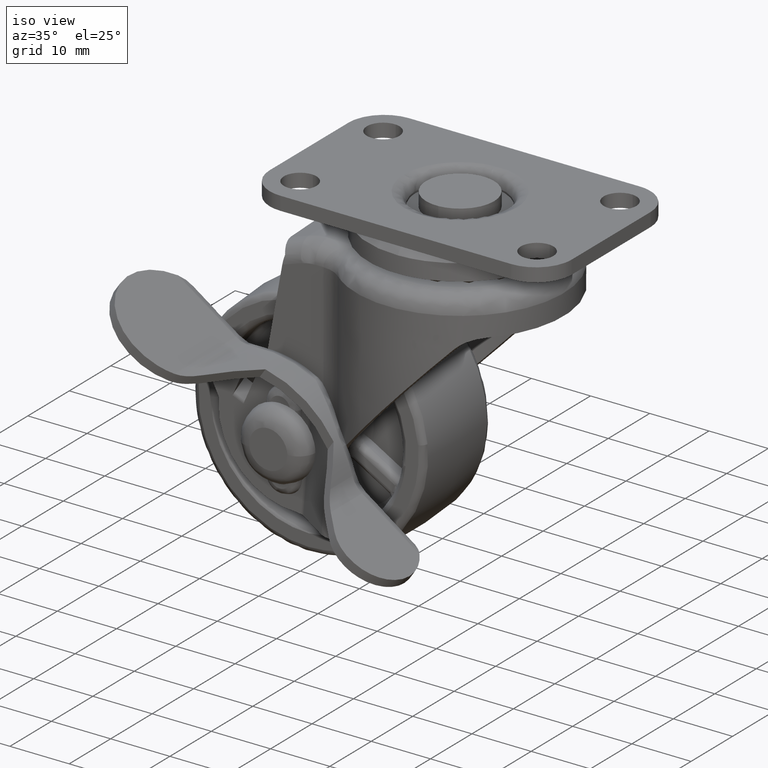
[diagram: clean part render]
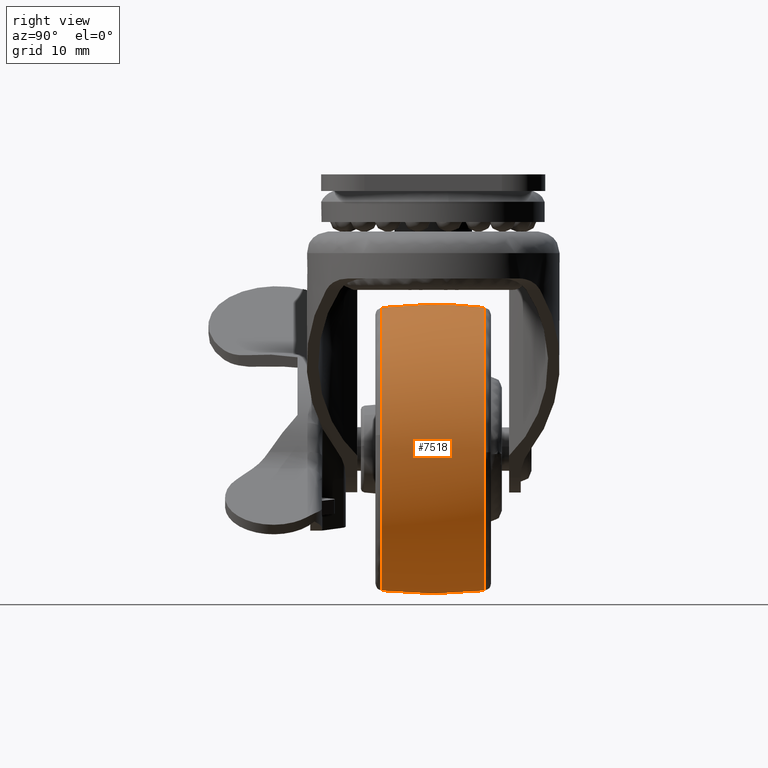
[diagram: tour spotlight — one face highlighted and labeled with its STEP entity id]
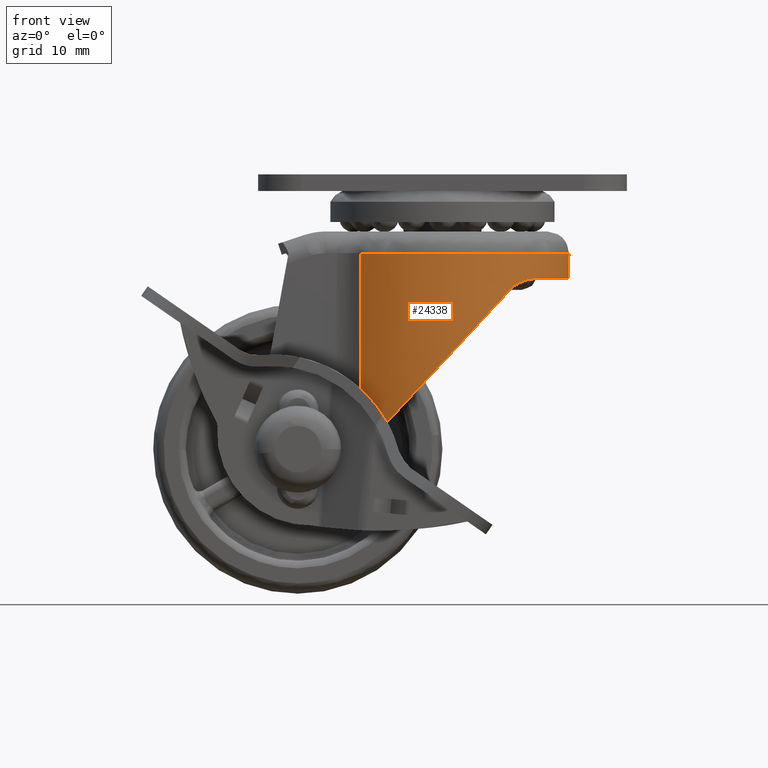
[diagram: tour spotlight — one face highlighted and labeled with its STEP entity id]
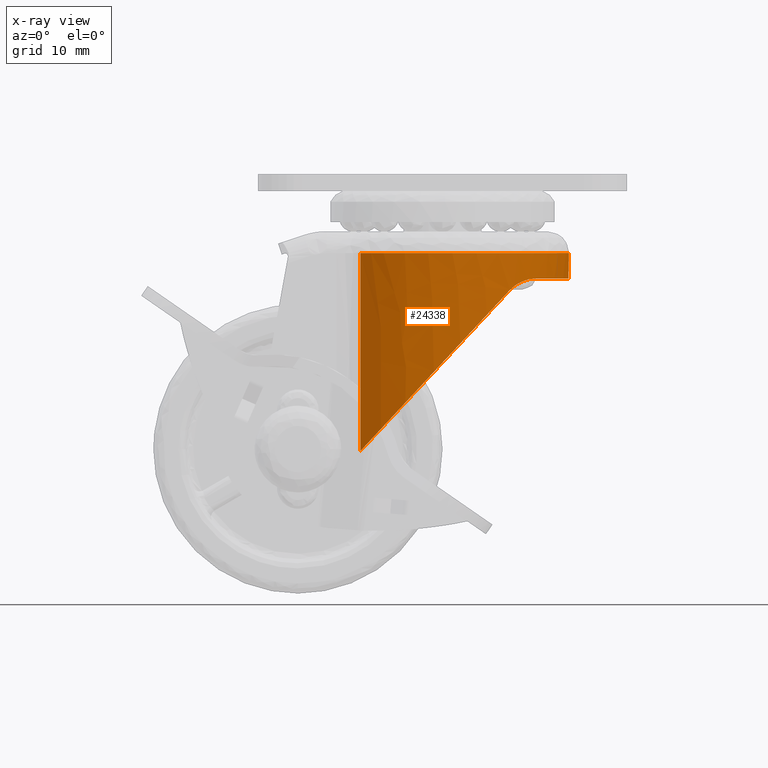
[diagram: x-ray of the same camera — body ghosted, this tour face saturated]
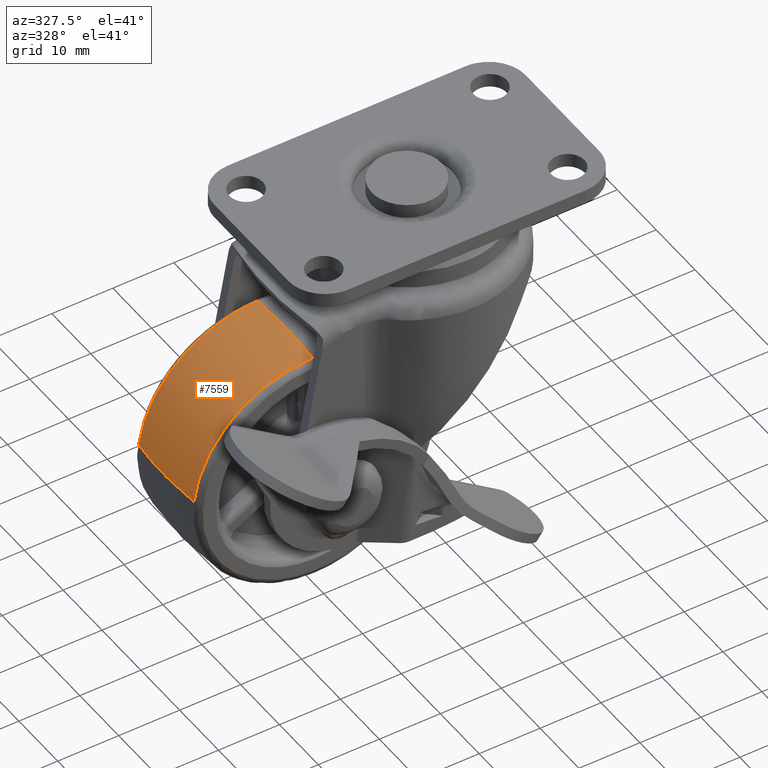
[diagram: tour spotlight — one face highlighted and labeled with its STEP entity id]
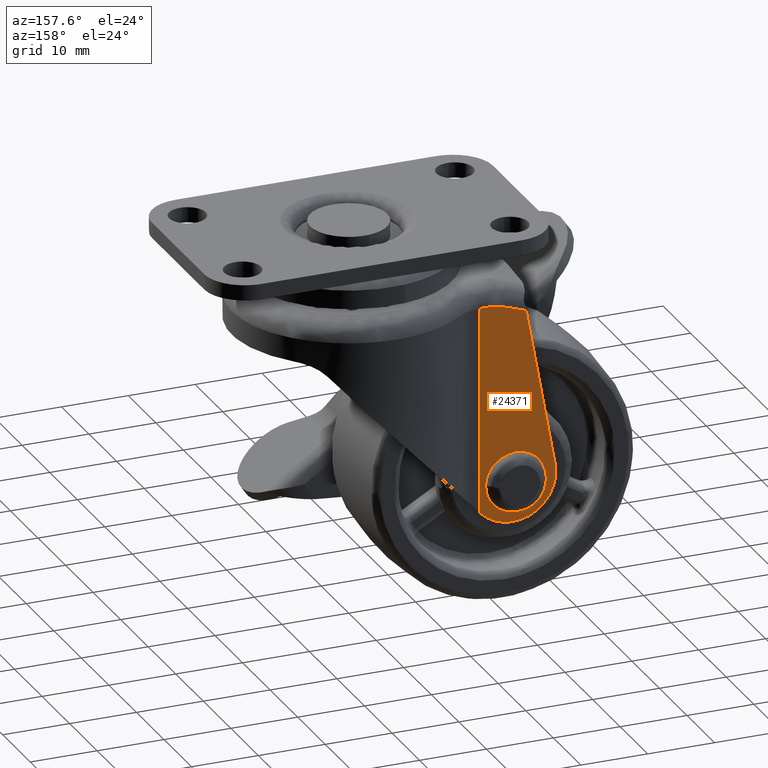
[diagram: tour spotlight — one face highlighted and labeled with its STEP entity id]
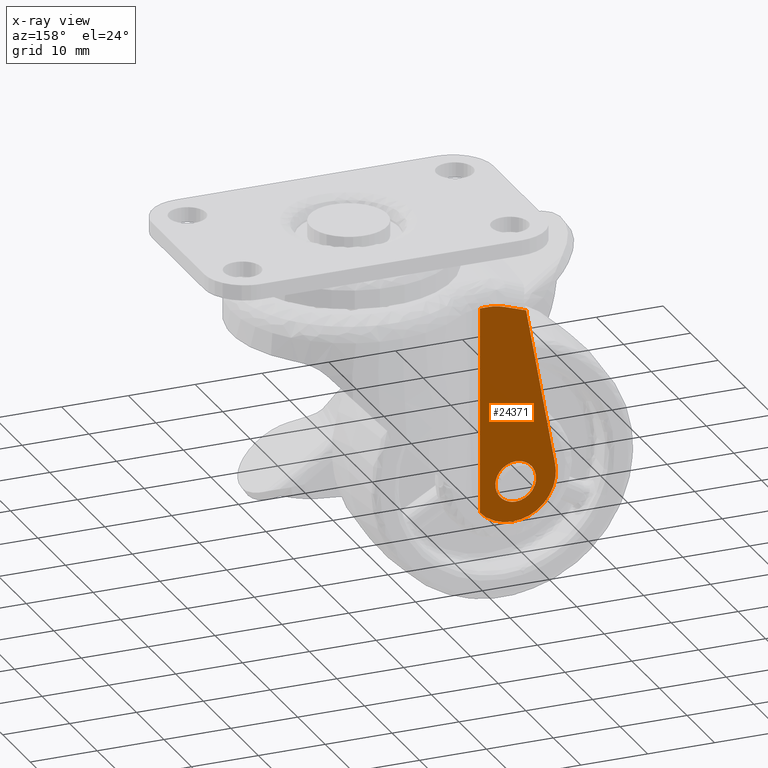
[diagram: x-ray of the same camera — body ghosted, this tour face saturated]
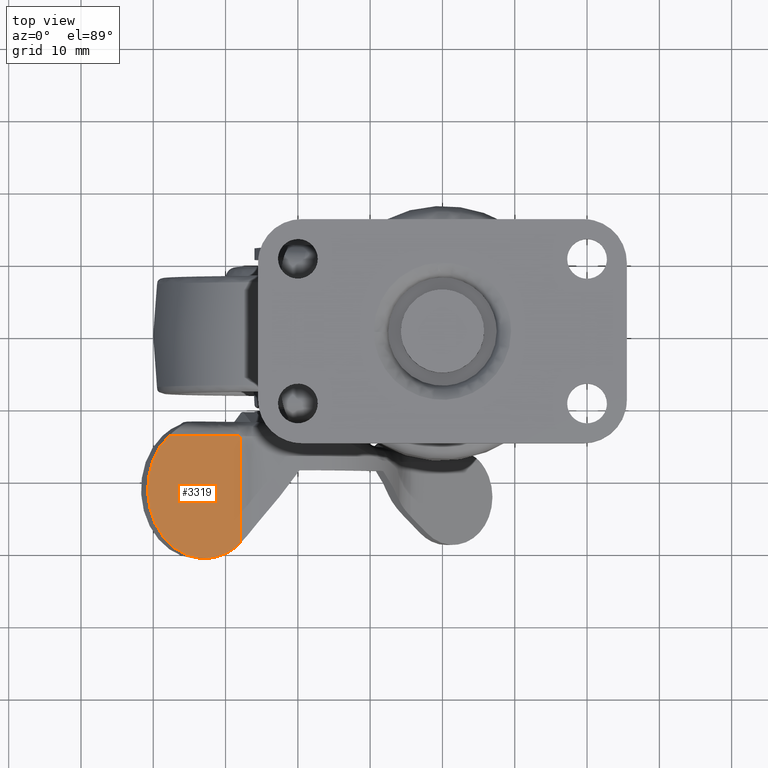
[diagram: tour spotlight — one face highlighted and labeled with its STEP entity id]
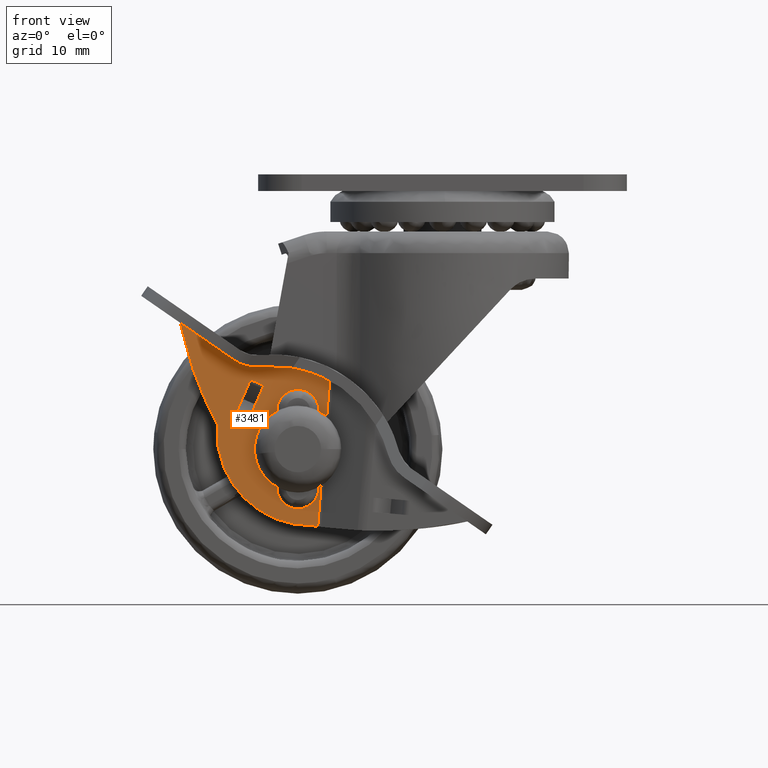
[diagram: tour spotlight — one face highlighted and labeled with its STEP entity id]
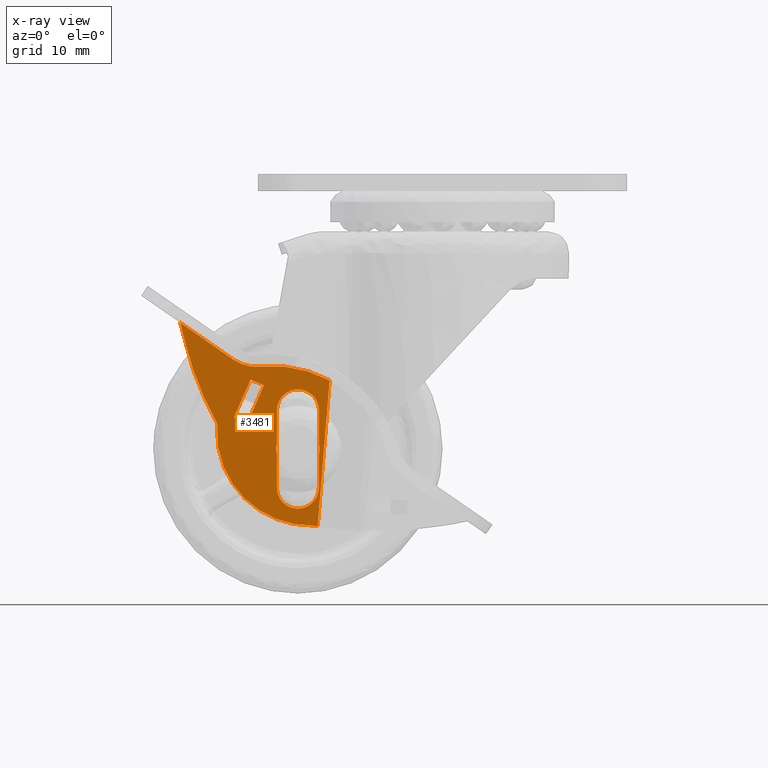
[diagram: x-ray of the same camera — body ghosted, this tour face saturated]
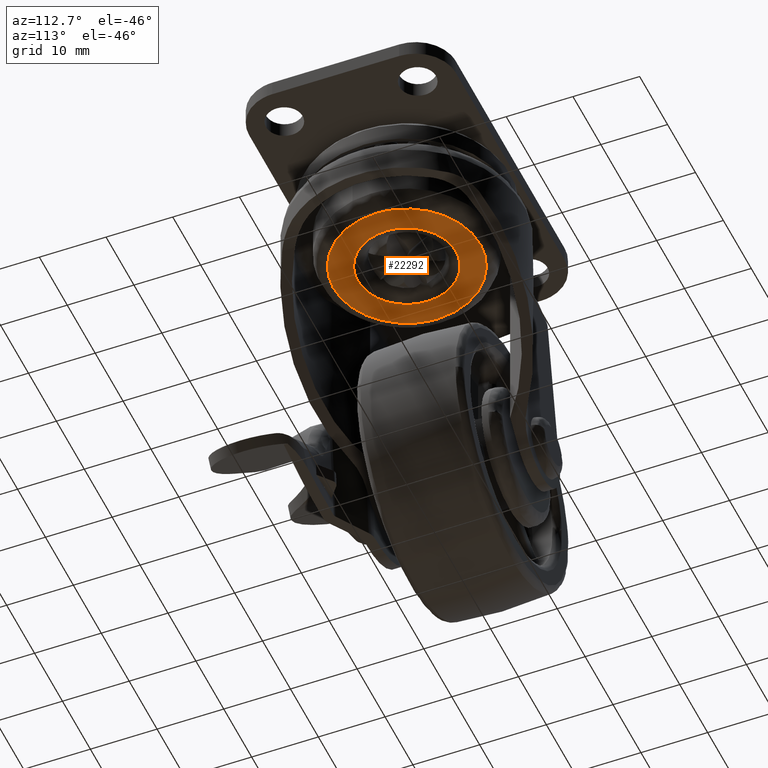
[diagram: tour spotlight — one face highlighted and labeled with its STEP entity id]
A machine part: a face-by-face anatomy tour. The part has 353 B-rep faces; the first image is the clean iso view, then the 7 largest visible faces are spotlighted one at a time (largest first), each with its STEP entity span.

Face 1 — right view, entity #7518. In plain terms, the highlighted face is a freeform B-spline surface patch.
Definition (entity closure, byte-faithful):
#6886=CARTESIAN_POINT('',(0.0,7.118643738764131,19.576210951356710));
#6887=VERTEX_POINT('',#6886);
#6901=CARTESIAN_POINT('',(19.571252960442209,7.118644011443535,-0.440578968768423));
#6902=VERTEX_POINT('',#6901);
#6903=CARTESIAN_POINT('',(19.571252960442202,7.118644011443535,-0.440578968768423));
#6904=CARTESIAN_POINT('',(19.576210925447150,7.118643955602270,-0.220317381106158));
#6905=CARTESIAN_POINT('',(19.576210925447150,7.118643955602270,1.181745E-015));
#6906=CARTESIAN_POINT('',(19.576210925447150,7.118643955602271,19.576210925447150));
#6907=CARTESIAN_POINT('',(0.0,7.118643738764131,19.576210951356710));
#6915=(BOUNDED_CURVE()B_SPLINE_CURVE(2,(#6903,#6904,#6905,#6906,#6907),.UNSPECIFIED.,.F.,.U.)B_SPLINE_CURVE_WITH_KNOTS((3,2,3),(0.246039451969112,0.250000000000000,0.500000000000000),.UNSPECIFIED.)CURVE()GEOMETRIC_REPRESENTATION_ITEM()RATIONAL_B_SPLINE_CURVE((0.990866876492965,0.995359929355871,1.0,0.707106781186548,1.0))REPRESENTATION_ITEM(''));
#6916=EDGE_CURVE('',#6902,#6887,#6915,.T.);
#6979=CARTESIAN_POINT('',(0.0,7.118643955602270,-19.576210925447150));
#6980=VERTEX_POINT('',#6979);
#6981=CARTESIAN_POINT('',(0.0,7.118643955602270,-19.576210925447150));
#6982=CARTESIAN_POINT('',(19.140480027959573,7.118643955602270,-19.576210925447153));
#6983=CARTESIAN_POINT('',(19.571252960442202,7.118644011443535,-0.440578968768423));
#6991=(BOUNDED_CURVE()B_SPLINE_CURVE(2,(#6981,#6982,#6983),.UNSPECIFIED.,.F.,.U.)B_SPLINE_CURVE_WITH_KNOTS((3,3),(0.0,0.246039451969112),.UNSPECIFIED.)CURVE()GEOMETRIC_REPRESENTATION_ITEM()RATIONAL_B_SPLINE_CURVE((1.0,0.711746851830676,0.990866876492965))REPRESENTATION_ITEM(''));
#6992=EDGE_CURVE('',#6980,#6902,#6991,.T.);
#6994=CARTESIAN_POINT('',(-19.445279401510842,7.118649067782592,2.260336098562421));
#6995=VERTEX_POINT('',#6994);
#6996=CARTESIAN_POINT('',(-19.445279401510842,7.118649067782592,2.260336098562421));
#6997=CARTESIAN_POINT('',(-19.576210334330465,7.118648935933976,1.133960129880808));
#6998=CARTESIAN_POINT('',(-19.576210351904042,7.118648787871385,-0.000000066669152));
#6999=CARTESIAN_POINT('',(-19.576210655286964,7.118646231781224,-19.576210956850808));
#7000=CARTESIAN_POINT('',(0.0,7.118643955602270,-19.576210925447150));
#7008=(BOUNDED_CURVE()B_SPLINE_CURVE(2,(#6996,#6997,#6998,#6999,#7000),.UNSPECIFIED.,.F.,.U.)B_SPLINE_CURVE_WITH_KNOTS((3,2,3),(0.730000138650092,0.750000000000000,1.0),.UNSPECIFIED.)CURVE()GEOMETRIC_REPRESENTATION_ITEM()RATIONAL_B_SPLINE_CURVE((0.956886391087834,0.976568704933611,1.0,0.707106781186548,1.0))REPRESENTATION_ITEM(''));
#7009=EDGE_CURVE('',#6995,#6980,#7008,.T.);
#7060=CARTESIAN_POINT('',(5.334080428898447,-7.118643946182971,-18.835489279828519));
#7061=VERTEX_POINT('',#7060);
#7062=CARTESIAN_POINT('',(19.477372109789901,-7.118640550551096,1.964702213886228));
#7063=VERTEX_POINT('',#7062);
#7064=CARTESIAN_POINT('',(5.334080428898445,-7.118643946182971,-18.835489279828511));
#7065=CARTESIAN_POINT('',(19.576211848757545,-7.118643281574909,-14.802215995903410));
#7066=CARTESIAN_POINT('',(19.576211848757548,-7.118640849619541,0.000000267247894));
#7067=CARTESIAN_POINT('',(19.576211848757541,-7.118640687814037,0.984837443208896));
#7068=CARTESIAN_POINT('',(19.477372109789901,-7.118640550551096,1.964702213886228));
#7076=(BOUNDED_CURVE()B_SPLINE_CURVE(2,(#7064,#7065,#7066,#7067,#7068),.UNSPECIFIED.,.F.,.U.)B_SPLINE_CURVE_WITH_KNOTS((3,2,3),(0.046426116433993,0.250000000000000,0.267423438541048),.UNSPECIFIED.)CURVE()GEOMETRIC_REPRESENTATION_ITEM()RATIONAL_B_SPLINE_CURVE((0.911418360697634,0.761498359903989,1.0,0.979587172011657,0.962019637254545))REPRESENTATION_ITEM(''));
#7077=EDGE_CURVE('',#7061,#7063,#7076,.T.);
#7162=CARTESIAN_POINT('',(0.0,-7.118644065926700,-19.576211848757548));
#7163=VERTEX_POINT('',#7162);
#7164=CARTESIAN_POINT('',(0.0,-7.118644065926700,-19.576211848757548));
#7165=CARTESIAN_POINT('',(2.718470814018492,-7.118644065926700,-19.576211848757552));
#7166=CARTESIAN_POINT('',(5.334080428898445,-7.118643946182971,-18.835489279828511));
#7174=(BOUNDED_CURVE()B_SPLINE_CURVE(2,(#7164,#7165,#7166),.UNSPECIFIED.,.F.,.U.)B_SPLINE_CURVE_WITH_KNOTS((3,3),(0.0,0.046426116433993),.UNSPECIFIED.)CURVE()GEOMETRIC_REPRESENTATION_ITEM()RATIONAL_B_SPLINE_CURVE((1.0,0.945608421282558,0.911418360697634))REPRESENTATION_ITEM(''));
#7175=EDGE_CURVE('',#7163,#7061,#7174,.T.);
#7224=CARTESIAN_POINT('',(0.0,-7.118637633312382,19.576212383253338));
#7225=VERTEX_POINT('',#7224);
#7226=CARTESIAN_POINT('',(19.477372109789901,-7.118640550551096,1.964702213886228));
#7227=CARTESIAN_POINT('',(17.700881371272875,-7.118637633312382,19.576212383253338));
#7228=CARTESIAN_POINT('',(0.0,-7.118637633312382,19.576212383253338));
#7236=(BOUNDED_CURVE()B_SPLINE_CURVE(2,(#7226,#7227,#7228),.UNSPECIFIED.,.F.,.U.)B_SPLINE_CURVE_WITH_KNOTS((3,3),(0.267423438541047,0.500000000000000),.UNSPECIFIED.)CURVE()GEOMETRIC_REPRESENTATION_ITEM()RATIONAL_B_SPLINE_CURVE((0.962019637254545,0.727519609174890,1.0))REPRESENTATION_ITEM(''));
#7237=EDGE_CURVE('',#7063,#7225,#7236,.T.);
#7239=CARTESIAN_POINT('',(-19.445281321579230,-7.118636615236500,2.260336522504607));
#7240=VERTEX_POINT('',#7239);
#7254=CARTESIAN_POINT('',(-19.445281321579234,-7.118636615236500,2.260336522504607));
#7255=CARTESIAN_POINT('',(-19.576212257138096,-7.118636807397811,1.133960399585470));
#7256=CARTESIAN_POINT('',(-19.576212244997159,-7.118637023190003,0.000000046059242));
#7257=CARTESIAN_POINT('',(-19.576212035401181,-7.118640748535102,-19.576211827061929));
#7258=CARTESIAN_POINT('',(0.0,-7.118644065926700,-19.576211848757548));
#7266=(BOUNDED_CURVE()B_SPLINE_CURVE(2,(#7254,#7255,#7256,#7257,#7258),.UNSPECIFIED.,.F.,.U.)B_SPLINE_CURVE_WITH_KNOTS((3,2,3),(0.730000136927027,0.750000000000000,1.0),.UNSPECIFIED.)CURVE()GEOMETRIC_REPRESENTATION_ITEM()RATIONAL_B_SPLINE_CURVE((0.956886387696420,0.976568702914915,1.0,0.707106781186547,1.0))REPRESENTATION_ITEM(''));
#7267=EDGE_CURVE('',#7240,#7163,#7266,.T.);
#7426=CARTESIAN_POINT('',(-19.356058350995514,-7.833860323427610,2.249980562390552));
#7427=CARTESIAN_POINT('',(-19.866232832661670,-3.933767002046251,2.309284096527579));
#7428=CARTESIAN_POINT('',(-19.866232832661677,0.0,2.309284096527579));
#7429=CARTESIAN_POINT('',(-19.866232832661673,3.933770004354201,2.309284096527578));
#7430=CARTESIAN_POINT('',(-19.356057575583201,7.833866251162727,2.249980472255330));
#7431=CARTESIAN_POINT('',(-19.486390312684350,-7.833860323427608,1.128765073858287));
#7432=CARTESIAN_POINT('',(-19.999999999999996,-3.933767002046250,1.158516334473230));
#7433=CARTESIAN_POINT('',(-19.999999999999993,0.0,1.158516334473230));
#7434=CARTESIAN_POINT('',(-19.999999999999993,3.933770004354201,1.158516334473231));
#7435=CARTESIAN_POINT('',(-19.486389532050890,7.833866251162726,1.128765028639456));
#7436=CARTESIAN_POINT('',(-19.486390312684346,-7.833860323427608,0.0));
#7437=CARTESIAN_POINT('',(-19.999999999999996,-3.933767002046250,0.0));
#7438=CARTESIAN_POINT('',(-20.0,0.0,0.0));
#7439=CARTESIAN_POINT('',(-20.0,3.933770004354200,0.0));
#7440=CARTESIAN_POINT('',(-19.486389532050882,7.833866251162726,0.0));
#7441=CARTESIAN_POINT('',(-19.486390312684346,-7.833860323427607,-19.486390312684346));
#7442=CARTESIAN_POINT('',(-19.999999999999993,-3.933767002046250,-19.999999999999993));
#7443=CARTESIAN_POINT('',(-19.999999999999996,0.0,-19.999999999999996));
#7444=CARTESIAN_POINT('',(-19.999999999999993,3.933770004354201,-19.999999999999993));
#7445=CARTESIAN_POINT('',(-19.486389532050893,7.833866251162726,-19.486389532050893));
#7446=CARTESIAN_POINT('',(0.0,-7.833860323427608,-19.486390312684346));
#7447=CARTESIAN_POINT('',(0.0,-3.933767002046250,-19.999999999999996));
#7448=CARTESIAN_POINT('',(0.0,0.0,-20.0));
#7449=CARTESIAN_POINT('',(0.0,3.933770004354200,-20.0));
#7450=CARTESIAN_POINT('',(0.0,7.833866251162726,-19.486389532050882));
#7451=CARTESIAN_POINT('',(19.486390312684346,-7.833860323427607,-19.486390312684346));
#7452=CARTESIAN_POINT('',(19.999999999999993,-3.933767002046250,-19.999999999999993));
#7453=CARTESIAN_POINT('',(19.999999999999996,0.0,-19.999999999999996));
#7454=CARTESIAN_POINT('',(19.999999999999993,3.933770004354201,-19.999999999999993));
#7455=CARTESIAN_POINT('',(19.486389532050893,7.833866251162726,-19.486389532050893));
#7456=CARTESIAN_POINT('',(19.486390312684346,-7.833860323427608,0.0));
#7457=CARTESIAN_POINT('',(19.999999999999996,-3.933767002046250,0.0));
#7458=CARTESIAN_POINT('',(20.0,0.0,0.0));
#7459=CARTESIAN_POINT('',(20.0,3.933770004354200,0.0));
#7460=CARTESIAN_POINT('',(19.486389532050882,7.833866251162726,0.0));
#7461=CARTESIAN_POINT('',(19.486390312684346,-7.833860323427607,19.486390312684346));
#7462=CARTESIAN_POINT('',(19.999999999999993,-3.933767002046250,19.999999999999993));
#7463=CARTESIAN_POINT('',(19.999999999999996,0.0,19.999999999999996));
#7464=CARTESIAN_POINT('',(19.999999999999993,3.933770004354201,19.999999999999993));
#7465=CARTESIAN_POINT('',(19.486389532050893,7.833866251162726,19.486389532050893));
#7466=CARTESIAN_POINT('',(0.0,-7.833860323427608,19.486390312684346));
#7467=CARTESIAN_POINT('',(0.0,-3.933767002046250,19.999999999999996));
#7468=CARTESIAN_POINT('',(0.0,0.0,20.0));
#7469=CARTESIAN_POINT('',(0.0,3.933770004354200,20.0));
#7470=CARTESIAN_POINT('',(0.0,7.833866251162726,19.486389532050882));
#7478=(BOUNDED_SURFACE()B_SPLINE_SURFACE(2,2,((#7426,#7431,#7436,#7441,#7446,#7451,#7456,#7461,#7466),(#7427,#7432,#7437,#7442,#7447,#7452,#7457,#7462,#7467),(#7428,#7433,#7438,#7443,#7448,#7453,#7458,#7463,#7468),(#7429,#7434,#7439,#7444,#7449,#7454,#7459,#7464,#7469),(#7430,#7435,#7440,#7445,#7450,#7455,#7460,#7465,#7470)),.UNSPECIFIED.,.F.,.F.,.U.)B_SPLINE_SURFACE_WITH_KNOTS((3,2,3),(3,2,2,2,3),(0.0,7.943475924984771,15.886957828885230),(0.0,2.650966246153037,35.788051236000634,68.925136225848220,102.062221215695800),.UNSPECIFIED.)GEOMETRIC_REPRESENTATION_ITEM()RATIONAL_B_SPLINE_SURFACE(((0.934659782483006,0.953885024447107,0.976772216352058,0.690682257857154,0.976772216352058,0.690682257857154,0.976772216352058,0.690682257857154,0.976772216352058),(0.943681637532350,0.963092452203804,0.986200563989681,0.697349106407101,0.986200563989681,0.697349106407101,0.986200563989681,0.697349106407101,0.986200563989681),(0.956886126402807,0.976568547383107,1.0,0.707106781186548,1.0,0.707106781186548,1.0,0.707106781186548,1.0),(0.943681627593562,0.963092442060582,0.986200553603087,0.697349099062670,0.986200553603087,0.697349099062670,0.986200553603087,0.697349099062670,0.986200553603087),(0.934659768901823,0.953885010586569,0.976772202158956,0.690682247821115,0.976772202158956,0.690682247821115,0.976772202158956,0.690682247821115,0.976772202158956)))REPRESENTATION_ITEM('')SURFACE());
#7479=ORIENTED_EDGE('',*,*,#7009,.T.);
#7480=ORIENTED_EDGE('',*,*,#6992,.T.);
#7481=ORIENTED_EDGE('',*,*,#6916,.T.);
#7482=CARTESIAN_POINT('',(0.0,-7.118637633312382,19.576212383253338));
#7483=CARTESIAN_POINT('',(0.0,-3.571933305084910,20.0));
#7484=CARTESIAN_POINT('',(0.0,0.0,20.0));
#7485=CARTESIAN_POINT('',(0.0,3.571936322658401,19.999999999999996));
#7486=CARTESIAN_POINT('',(0.0,7.118643738764131,19.576210951356707));
#7494=(BOUNDED_CURVE()B_SPLINE_CURVE(2,(#7482,#7483,#7484,#7485,#7486),.UNSPECIFIED.,.F.,.U.)B_SPLINE_CURVE_WITH_KNOTS((3,2,3),(0.428002972928681,0.500000000000000,0.571997087131401),.UNSPECIFIED.)CURVE()GEOMETRIC_REPRESENTATION_ITEM()RATIONAL_B_SPLINE_CURVE((0.978520982147090,0.987453931858267,1.0,0.987453921392309,0.978520967243319))REPRESENTATION_ITEM(''));
#7495=EDGE_CURVE('',#7225,#6887,#7494,.T.);
#7496=ORIENTED_EDGE('',*,*,#7495,.F.);
#7497=ORIENTED_EDGE('',*,*,#7237,.F.);
#7498=ORIENTED_EDGE('',*,*,#7077,.F.);
#7499=ORIENTED_EDGE('',*,*,#7175,.F.);
#7500=ORIENTED_EDGE('',*,*,#7267,.F.);
#7501=CARTESIAN_POINT('',(-19.445281321579234,-7.118636615236500,2.260336522504608));
#7502=CARTESIAN_POINT('',(-19.866234955456697,-3.571932845967453,2.309268836740242));
#7503=CARTESIAN_POINT('',(-19.866234846185112,-0.000000027581139,2.309268773672957));
#7504=CARTESIAN_POINT('',(-19.866234736913331,3.571939111467367,2.309268710605561));
#7505=CARTESIAN_POINT('',(-19.445279401510835,7.118649067782592,2.260336098562422));
#7513=(BOUNDED_CURVE()B_SPLINE_CURVE(2,(#7501,#7502,#7503,#7504,#7505),.UNSPECIFIED.,.F.,.U.)B_SPLINE_CURVE_WITH_KNOTS((3,2,3),(0.428002982891092,0.500000000000000,0.571997142911804),.UNSPECIFIED.)CURVE()GEOMETRIC_REPRESENTATION_ITEM()RATIONAL_B_SPLINE_CURVE((0.936333146540407,0.944880961409146,0.956886118190660,0.944880940432117,0.936333116668628))REPRESENTATION_ITEM(''));
#7514=EDGE_CURVE('',#7240,#6995,#7513,.T.);
#7515=ORIENTED_EDGE('',*,*,#7514,.T.);
#7516=EDGE_LOOP('',(#7479,#7480,#7481,#7496,#7497,#7498,#7499,#7500,#7515));
#7517=FACE_OUTER_BOUND('',#7516,.T.);
#7518=ADVANCED_FACE('',(#7517),#7478,.T.);

Face 2 — front view, entity #24338. An x-ray twin of the same camera follows (body ghosted, this face saturated) — the face is partly hidden behind the body. In plain terms, the highlighted face is a freeform B-spline surface patch.
Definition (entity closure, byte-faithful):
#22367=CARTESIAN_POINT('',(8.626346233509478,13.300000000000001,27.100000999999899));
#22368=VERTEX_POINT('',#22367);
#22491=CARTESIAN_POINT('',(8.626346233509478,13.300000000000001,-0.300960861189623));
#22492=VERTEX_POINT('',#22491);
#22512=CARTESIAN_POINT('',(8.626346233509478,13.300000000000001,-0.300960861189623));
#22513=CARTESIAN_POINT('',(8.626346233509478,13.300000000000001,27.100000999999899));
#22514=QUASI_UNIFORM_CURVE('',1,(#22512,#22513),.UNSPECIFIED.,.F.,.U.);
#22515=EDGE_CURVE('',#22492,#22368,#22514,.T.);
#22534=CARTESIAN_POINT('',(8.626346233509450,-13.300000000000001,27.100000999999899));
#22535=VERTEX_POINT('',#22534);
#22558=CARTESIAN_POINT('',(8.626346233509450,-13.300000000000001,-0.300960861189654));
#22559=VERTEX_POINT('',#22558);
#22573=CARTESIAN_POINT('',(8.626346233509450,-13.300000000000001,27.100000999999899));
#22574=CARTESIAN_POINT('',(8.626346233509450,-13.300000000000001,-0.300960861189654));
#22575=QUASI_UNIFORM_CURVE('',1,(#22573,#22574),.UNSPECIFIED.,.F.,.U.);
#22576=EDGE_CURVE('',#22535,#22559,#22575,.T.);
#23291=CARTESIAN_POINT('',(8.626346233509478,13.300000000000001,27.100000999999899));
#23292=CARTESIAN_POINT('',(21.252840934201931,24.097697669932419,27.100000999999903));
#23293=CARTESIAN_POINT('',(32.691542134513583,12.048848834966201,27.100000999999899));
#23294=CARTESIAN_POINT('',(44.130243334825238,-1.908196E-014,27.100000999999903));
#23295=CARTESIAN_POINT('',(32.691542134513568,-12.048848834966220,27.100000999999899));
#23296=CARTESIAN_POINT('',(21.252840934201892,-24.097697669932419,27.100000999999903));
#23297=CARTESIAN_POINT('',(8.626346233509450,-13.300000000000001,27.100000999999899));
#23305=(BOUNDED_CURVE()B_SPLINE_CURVE(2,(#23291,#23292,#23293,#23294,#23295,#23296,#23297),.UNSPECIFIED.,.F.,.U.)B_SPLINE_CURVE_WITH_KNOTS((3,2,2,3),(0.0,0.333333333333333,0.666666666666667,1.0),.UNSPECIFIED.)CURVE()GEOMETRIC_REPRESENTATION_ITEM()RATIONAL_B_SPLINE_CURVE((1.0,0.725230979115061,1.0,0.725230979115061,1.0,0.725230979115061,1.0))REPRESENTATION_ITEM(''));
#23306=EDGE_CURVE('',#22368,#22535,#23305,.T.);
#23982=CARTESIAN_POINT('',(29.333057458796201,-14.803514395940081,21.999046749210351));
#23983=VERTEX_POINT('',#23982);
#23984=CARTESIAN_POINT('',(29.333057458796201,-14.803514395940081,21.999046749210351));
#23985=CARTESIAN_POINT('',(18.425806024065082,-21.680125019279920,10.252527113295203));
#23986=CARTESIAN_POINT('',(8.626346233509450,-13.300000000000001,-0.300960861189654));
#23994=(BOUNDED_CURVE()B_SPLINE_CURVE(2,(#23984,#23985,#23986),.UNSPECIFIED.,.F.,.U.)CURVE()GEOMETRIC_REPRESENTATION_ITEM()QUASI_UNIFORM_CURVE()RATIONAL_B_SPLINE_CURVE((1.0,0.805071453131954,1.0))REPRESENTATION_ITEM(''));
#23995=EDGE_CURVE('',#23983,#22559,#23994,.T.);
#24033=CARTESIAN_POINT('',(29.333057458796201,14.803514395940081,21.999046749210351));
#24034=VERTEX_POINT('',#24033);
#24035=CARTESIAN_POINT('',(8.626346233509478,13.300000000000001,-0.300960861189623));
#24036=CARTESIAN_POINT('',(18.425806024065189,21.680125019279906,10.252527113295324));
#24037=CARTESIAN_POINT('',(29.333057458796201,14.803514395940081,21.999046749210351));
#24045=(BOUNDED_CURVE()B_SPLINE_CURVE(2,(#24035,#24036,#24037),.UNSPECIFIED.,.F.,.U.)CURVE()GEOMETRIC_REPRESENTATION_ITEM()QUASI_UNIFORM_CURVE()RATIONAL_B_SPLINE_CURVE((1.0,0.805071453131944,1.0))REPRESENTATION_ITEM(''));
#24046=EDGE_CURVE('',#22492,#24034,#24045,.T.);
#24077=CARTESIAN_POINT('',(33.0,-11.715374513859761,23.599997999999800));
#24078=VERTEX_POINT('',#24077);
#24079=CARTESIAN_POINT('',(33.0,-11.715374513859761,23.599997999999800));
#24080=CARTESIAN_POINT('',(32.939139707883911,-11.782908330573990,23.599998075164251));
#24081=CARTESIAN_POINT('',(32.877672263262383,-11.850057760519450,23.598887421423608));
#24082=CARTESIAN_POINT('',(32.749807647543960,-11.987565924083080,23.594168294431810));
#24083=CARTESIAN_POINT('',(32.683223786433601,-12.057992036663050,23.590405185559980));
#24084=CARTESIAN_POINT('',(32.348392649382163,-12.406312914981489,23.564631381768638));
#24085=CARTESIAN_POINT('',(32.074683647107442,-12.672568557320909,23.521991656073752));
#24086=CARTESIAN_POINT('',(31.518027445256660,-13.180554722318650,23.383928314119160));
#24087=CARTESIAN_POINT('',(31.235054653563971,-13.422292095830050,23.288631606264531));
#24088=CARTESIAN_POINT('',(30.877599699031158,-13.708983311082360,23.127863036145840));
#24089=CARTESIAN_POINT('',(30.806246745210188,-13.765285239133849,23.093744783371051));
#24090=CARTESIAN_POINT('',(30.664565772758738,-13.875340835870841,23.021769191071350));
#24091=CARTESIAN_POINT('',(30.594136315120650,-13.929176003901580,22.983866733705270));
#24092=CARTESIAN_POINT('',(30.384242238239729,-14.087163901284750,22.864239070825640));
#24093=CARTESIAN_POINT('',(30.246165794017941,-14.187802506988691,22.776606550110639));
#24094=CARTESIAN_POINT('',(29.974701481720292,-14.379950758134910,22.584371312101769));
#24095=CARTESIAN_POINT('',(29.841310043154309,-14.471461615219191,22.479775271228700));
#24096=CARTESIAN_POINT('',(29.645650572528780,-14.601971483133299,22.308884409406140));
#24097=CARTESIAN_POINT('',(29.580976186671158,-14.644471583118060,22.249382261571480));
#24098=CARTESIAN_POINT('',(29.454792788111948,-14.726253629901199,22.126927989309721));
#24099=CARTESIAN_POINT('',(29.393167755265761,-14.765617121292390,22.063894599168311));
#24100=CARTESIAN_POINT('',(29.333057458796201,-14.803514395940081,21.999046749210351));
#24101=B_SPLINE_CURVE_WITH_KNOTS('',3,(#24079,#24080,#24081,#24082,#24083,#24084,#24085,#24086,#24087,#24088,#24089,#24090,#24091,#24092,#24093,#24094,#24095,#24096,#24097,#24098,#24099,#24100),.UNSPECIFIED.,.F.,.U.,(4,2,2,2,2,2,2,2,2,2,4),(0.859814311719145,0.867187500000002,0.875000000000001,0.906250000000001,0.937500000000000,0.945312500000000,0.953125000000000,0.968750000000000,0.984375000000000,0.992187500000000,1.0),.UNSPECIFIED.);
#24102=EDGE_CURVE('',#24078,#23983,#24101,.T.);
#24128=CARTESIAN_POINT('',(33.0,11.715374513859761,23.599997999999800));
#24129=VERTEX_POINT('',#24128);
#24130=CARTESIAN_POINT('',(29.333057458796201,14.803514395940081,21.999046749210351));
#24131=CARTESIAN_POINT('',(29.574367972688041,14.651377096180180,22.259374599218660));
#24132=CARTESIAN_POINT('',(29.833902442065590,14.479510009174900,22.484308432087740));
#24133=CARTESIAN_POINT('',(30.175190104289040,14.238064643456720,22.726426626806290));
#24134=CARTESIAN_POINT('',(30.244476026683820,14.188308978725610,22.772988013381120));
#24135=CARTESIAN_POINT('',(30.383599161327460,14.086811816437381,22.861593591391941));
#24136=CARTESIAN_POINT('',(30.453432852280841,14.035077880130810,22.903652529182342));
#24137=CARTESIAN_POINT('',(30.663576068644652,13.876918606736570,23.023465282511950));
#24138=CARTESIAN_POINT('',(30.804523160126561,13.767537972176910,23.094868419489821));
#24139=CARTESIAN_POINT('',(31.087328232441969,13.540826084049440,23.222297019946080));
#24140=CARTESIAN_POINT('',(31.229188008245039,13.423494324188610,23.278317816858081));
#24141=CARTESIAN_POINT('',(31.442164518022778,13.241433563611229,23.351700015379159));
#24142=CARTESIAN_POINT('',(31.513320340005858,13.179618741061750,23.374421237453859));
#24143=CARTESIAN_POINT('',(31.654963507227048,13.054528676188561,23.416241508114410));
#24144=CARTESIAN_POINT('',(31.725336128474311,12.991359229702070,23.435314803366449));
#24145=CARTESIAN_POINT('',(32.074908064558102,12.672405890763500,23.522099018697880));
#24146=CARTESIAN_POINT('',(32.347225177028143,12.407317128860310,23.564278924125698));
#24147=CARTESIAN_POINT('',(32.743086559247139,11.995816308312380,23.595112068608920));
#24148=CARTESIAN_POINT('',(32.872537751817539,11.856813425630680,23.599999038868990));
#24149=CARTESIAN_POINT('',(33.0,11.715374513859761,23.599997999999800));
#24150=B_SPLINE_CURVE_WITH_KNOTS('',3,(#24130,#24131,#24132,#24133,#24134,#24135,#24136,#24137,#24138,#24139,#24140,#24141,#24142,#24143,#24144,#24145,#24146,#24147,#24148,#24149),.UNSPECIFIED.,.F.,.U.,(4,2,2,2,2,2,2,2,2,4),(0.0,0.031250000000000,0.039062500000000,0.046874999999999,0.062499999999999,0.078124999999998,0.085937499999998,0.093749999999998,0.124999999999998,0.140524045002834),.UNSPECIFIED.);
#24151=EDGE_CURVE('',#24034,#24129,#24150,.T.);
#24168=CARTESIAN_POINT('',(33.0,11.715374513859761,23.599997999999800));
#24169=CARTESIAN_POINT('',(43.557692307692115,5.204170E-015,23.599997999999800));
#24170=CARTESIAN_POINT('',(33.0,-11.715374513859761,23.599997999999800));
#24178=(BOUNDED_CURVE()B_SPLINE_CURVE(2,(#24168,#24169,#24170),.UNSPECIFIED.,.F.,.U.)CURVE()GEOMETRIC_REPRESENTATION_ITEM()QUASI_UNIFORM_CURVE()RATIONAL_B_SPLINE_CURVE((1.0,0.742857142857149,1.0))REPRESENTATION_ITEM(''));
#24179=EDGE_CURVE('',#24129,#24078,#24178,.T.);
#24306=CARTESIAN_POINT('',(8.073028478151652,-12.806145021708071,27.785025046529650));
#24307=CARTESIAN_POINT('',(8.073028478151652,-12.806145021708071,-1.003110508882639));
#24308=CARTESIAN_POINT('',(20.731027443859276,-24.595141080370869,27.785025046529654));
#24309=CARTESIAN_POINT('',(20.731027443859276,-24.595141080370869,-1.003110508882639));
#24310=CARTESIAN_POINT('',(32.666504664325039,-12.075167062555771,27.785025046529650));
#24311=CARTESIAN_POINT('',(32.666504664325039,-12.075167062555771,-1.003110508882639));
#24312=CARTESIAN_POINT('',(44.601981884790810,0.444806955259319,27.785025046529654));
#24313=CARTESIAN_POINT('',(44.601981884790810,0.444806955259319,-1.003110508882639));
#24314=CARTESIAN_POINT('',(32.221727818936472,12.525149464969839,27.785025046529650));
#24315=CARTESIAN_POINT('',(32.221727818936472,12.525149464969839,-1.003110508882639));
#24316=CARTESIAN_POINT('',(19.841473753082131,24.605491974680373,27.785025046529654));
#24317=CARTESIAN_POINT('',(19.841473753082131,24.605491974680373,-1.003110508882639));
#24318=CARTESIAN_POINT('',(7.617901439126273,12.366633949010080,27.785025046529650));
#24319=CARTESIAN_POINT('',(7.617901439126273,12.366633949010080,-1.003110508882639));
#24327=(BOUNDED_SURFACE()B_SPLINE_SURFACE(1,2,((#24306,#24308,#24310,#24312,#24314,#24316,#24318),(#24307,#24309,#24311,#24313,#24315,#24317,#24319)),.UNSPECIFIED.,.F.,.F.,.U.)B_SPLINE_SURFACE_WITH_KNOTS((2,2),(3,2,2,3),(0.0,28.788135555412289),(0.0,28.756678072265281,57.513356144530569,86.270034216795850),.UNSPECIFIED.)GEOMETRIC_REPRESENTATION_ITEM()RATIONAL_B_SPLINE_SURFACE(((1.0,0.711208572010137,1.0,0.711208572010137,1.0,0.711208572010137,1.0),(1.0,0.711208572010137,1.0,0.711208572010137,1.0,0.711208572010137,1.0)))REPRESENTATION_ITEM('')SURFACE());
#24328=ORIENTED_EDGE('',*,*,#23306,.T.);
#24329=ORIENTED_EDGE('',*,*,#22576,.T.);
#24330=ORIENTED_EDGE('',*,*,#23995,.F.);
#24331=ORIENTED_EDGE('',*,*,#24102,.F.);
#24332=ORIENTED_EDGE('',*,*,#24179,.F.);
#24333=ORIENTED_EDGE('',*,*,#24151,.F.);
#24334=ORIENTED_EDGE('',*,*,#24046,.F.);
#24335=ORIENTED_EDGE('',*,*,#22515,.T.);
#24336=EDGE_LOOP('',(#24328,#24329,#24330,#24331,#24332,#24333,#24334,#24335));
#24337=FACE_OUTER_BOUND('',#24336,.T.);
#24338=ADVANCED_FACE('',(#24337),#24327,.T.);

Face 3 — auxiliary view, entity #7559. In plain terms, the highlighted face is a freeform B-spline surface patch.
Definition (entity closure, byte-faithful):
#6871=CARTESIAN_POINT('',(-19.389481643099138,7.118649055468191,2.697411774477859));
#6872=VERTEX_POINT('',#6871);
#6886=CARTESIAN_POINT('',(0.0,7.118643738764131,19.576210951356710));
#6887=VERTEX_POINT('',#6886);
#6888=CARTESIAN_POINT('',(0.0,7.118643738764131,19.576210951356710));
#6889=CARTESIAN_POINT('',(-17.041349023748442,7.118646343491886,19.576210904218314));
#6890=CARTESIAN_POINT('',(-19.389481643099135,7.118649055468191,2.697411774477859));
#6898=(BOUNDED_CURVE()B_SPLINE_CURVE(2,(#6888,#6889,#6890),.UNSPECIFIED.,.F.,.U.)B_SPLINE_CURVE_WITH_KNOTS((3,3),(0.500000000000000,0.726207391011957),.UNSPECIFIED.)CURVE()GEOMETRIC_REPRESENTATION_ITEM()RATIONAL_B_SPLINE_CURVE((1.0,0.734981556508459,0.949556158395087))REPRESENTATION_ITEM(''));
#6899=EDGE_CURVE('',#6887,#6872,#6898,.T.);
#6994=CARTESIAN_POINT('',(-19.445279401510842,7.118649067782592,2.260336098562421));
#6995=VERTEX_POINT('',#6994);
#7011=CARTESIAN_POINT('',(-19.389481643099135,7.118649055468191,2.697411774477859));
#7012=CARTESIAN_POINT('',(-19.419839882434577,7.118649034106405,2.479187902296852));
#7013=CARTESIAN_POINT('',(-19.445279401510842,7.118649067782592,2.260336098562421));
#7021=(BOUNDED_CURVE()B_SPLINE_CURVE(2,(#7011,#7012,#7013),.UNSPECIFIED.,.F.,.U.)B_SPLINE_CURVE_WITH_KNOTS((3,3),(0.726207391011957,0.730000138650092),.UNSPECIFIED.)CURVE()GEOMETRIC_REPRESENTATION_ITEM()RATIONAL_B_SPLINE_CURVE((0.949556158395088,0.953153862744484,0.956886391087834))REPRESENTATION_ITEM(''));
#7022=EDGE_CURVE('',#6872,#6995,#7021,.T.);
#7224=CARTESIAN_POINT('',(0.0,-7.118637633312382,19.576212383253338));
#7225=VERTEX_POINT('',#7224);
#7239=CARTESIAN_POINT('',(-19.445281321579230,-7.118636615236500,2.260336522504607));
#7240=VERTEX_POINT('',#7239);
#7241=CARTESIAN_POINT('',(0.0,-7.118637633312382,19.576212383253338));
#7242=CARTESIAN_POINT('',(-17.432468600714977,-7.118637124274442,19.576212140369073));
#7243=CARTESIAN_POINT('',(-19.445281321579234,-7.118636615236500,2.260336522504607));
#7251=(BOUNDED_CURVE()B_SPLINE_CURVE(2,(#7241,#7242,#7243),.UNSPECIFIED.,.F.,.U.)B_SPLINE_CURVE_WITH_KNOTS((3,3),(0.500000000000000,0.730000136927027),.UNSPECIFIED.)CURVE()GEOMETRIC_REPRESENTATION_ITEM()RATIONAL_B_SPLINE_CURVE((1.0,0.730538078271633,0.956886387696420))REPRESENTATION_ITEM(''));
#7252=EDGE_CURVE('',#7225,#7240,#7251,.T.);
#7482=CARTESIAN_POINT('',(0.0,-7.118637633312382,19.576212383253338));
#7483=CARTESIAN_POINT('',(0.0,-3.571933305084910,20.0));
#7484=CARTESIAN_POINT('',(0.0,0.0,20.0));
#7485=CARTESIAN_POINT('',(0.0,3.571936322658401,19.999999999999996));
#7486=CARTESIAN_POINT('',(0.0,7.118643738764131,19.576210951356707));
#7494=(BOUNDED_CURVE()B_SPLINE_CURVE(2,(#7482,#7483,#7484,#7485,#7486),.UNSPECIFIED.,.F.,.U.)B_SPLINE_CURVE_WITH_KNOTS((3,2,3),(0.428002972928681,0.500000000000000,0.571997087131401),.UNSPECIFIED.)CURVE()GEOMETRIC_REPRESENTATION_ITEM()RATIONAL_B_SPLINE_CURVE((0.978520982147090,0.987453931858267,1.0,0.987453921392309,0.978520967243319))REPRESENTATION_ITEM(''));
#7495=EDGE_CURVE('',#7225,#6887,#7494,.T.);
#7501=CARTESIAN_POINT('',(-19.445281321579234,-7.118636615236500,2.260336522504608));
#7502=CARTESIAN_POINT('',(-19.866234955456697,-3.571932845967453,2.309268836740242));
#7503=CARTESIAN_POINT('',(-19.866234846185112,-0.000000027581139,2.309268773672957));
#7504=CARTESIAN_POINT('',(-19.866234736913331,3.571939111467367,2.309268710605561));
#7505=CARTESIAN_POINT('',(-19.445279401510835,7.118649067782592,2.260336098562422));
#7513=(BOUNDED_CURVE()B_SPLINE_CURVE(2,(#7501,#7502,#7503,#7504,#7505),.UNSPECIFIED.,.F.,.U.)B_SPLINE_CURVE_WITH_KNOTS((3,2,3),(0.428002982891092,0.500000000000000,0.571997142911804),.UNSPECIFIED.)CURVE()GEOMETRIC_REPRESENTATION_ITEM()RATIONAL_B_SPLINE_CURVE((0.936333146540407,0.944880961409146,0.956886118190660,0.944880940432117,0.936333116668628))REPRESENTATION_ITEM(''));
#7514=EDGE_CURVE('',#7240,#6995,#7513,.T.);
#7519=CARTESIAN_POINT('',(0.126425832434795,-7.833850987689387,19.486391542122277));
#7520=CARTESIAN_POINT('',(0.129758074666118,-3.933762273636526,20.0));
#7521=CARTESIAN_POINT('',(0.129758074666118,0.0,20.0));
#7522=CARTESIAN_POINT('',(0.129758074666118,3.933769779406275,19.999999999999993));
#7523=CARTESIAN_POINT('',(0.126425819773117,7.833865807027173,19.486389590539872));
#7524=CARTESIAN_POINT('',(0.063297968993122,-7.833850987689388,19.486391542122284));
#7525=CARTESIAN_POINT('',(0.064966331869392,-3.933762273636526,20.000000000000004));
#7526=CARTESIAN_POINT('',(0.064966331869392,0.0,19.999999999999993));
#7527=CARTESIAN_POINT('',(0.064966331869392,3.933769779406276,19.999999999999993));
#7528=CARTESIAN_POINT('',(0.063297962653764,7.833865807027173,19.486389590539869));
#7529=CARTESIAN_POINT('',(-17.352469947324241,-7.833850987689387,19.486391542122288));
#7530=CARTESIAN_POINT('',(-17.809834016538868,-3.933762273636526,19.999999999999993));
#7531=CARTESIAN_POINT('',(-17.809834016538868,0.0,20.000000000000007));
#7532=CARTESIAN_POINT('',(-17.809834016538868,3.933769779406276,20.000000000000004));
#7533=CARTESIAN_POINT('',(-17.352468209456305,7.833865807027173,19.486389590539872));
#7534=CARTESIAN_POINT('',(-19.363699645208140,-7.833850987689387,2.184254951237445));
#7535=CARTESIAN_POINT('',(-19.874074277273010,-3.933762273636527,2.241825990733999));
#7536=CARTESIAN_POINT('',(-19.874074277273007,0.0,2.241825990733999));
#7537=CARTESIAN_POINT('',(-19.874074277273003,3.933769779406276,2.241825990733998));
#7538=CARTESIAN_POINT('',(-19.363697705913449,7.833865807027173,2.184254732482037));
#7539=CARTESIAN_POINT('',(-19.371321741730799,-7.833850987689387,2.118683845518991));
#7540=CARTESIAN_POINT('',(-19.881897271598241,-3.933762273636527,2.174526608417151));
#7541=CARTESIAN_POINT('',(-19.881897271598238,0.0,2.174526608417150));
#7542=CARTESIAN_POINT('',(-19.881897271598241,3.933769779406276,2.174526608417151));
#7543=CARTESIAN_POINT('',(-19.371319801672751,7.833865807027173,2.118683633330596));
#7551=(BOUNDED_SURFACE()B_SPLINE_SURFACE(2,2,((#7519,#7524,#7529,#7534,#7539),(#7520,#7525,#7530,#7535,#7540),(#7521,#7526,#7531,#7536,#7541),(#7522,#7527,#7532,#7537,#7542),(#7523,#7528,#7533,#7538,#7543)),.UNSPECIFIED.,.F.,.F.,.U.)B_SPLINE_SURFACE_WITH_KNOTS((3,2,3),(3,1,1,3),(0.0,7.943466499992877,15.886947947274960),(0.0,0.152263484019396,30.604942610890511,30.757224452588751),.UNSPECIFIED.)GEOMETRIC_REPRESENTATION_ITEM()RATIONAL_B_SPLINE_SURFACE(((0.979404267911353,0.978088253308247,0.713569470866528,0.935765381396656,0.936870966942349),(0.988858015344200,0.987529297845994,0.720457234963931,0.944797902350431,0.945914159614491),(1.002694619177241,1.001347309588621,0.730538238691624,0.958017994693578,0.959149871196496),(0.988857989307744,0.987529271844523,0.720457215994419,0.944797877474070,0.945914134708739),(0.979404232332972,0.978088217777673,0.713569444945010,0.935765347403526,0.936870932909057)))REPRESENTATION_ITEM('')SURFACE());
#7552=ORIENTED_EDGE('',*,*,#6899,.T.);
#7553=ORIENTED_EDGE('',*,*,#7022,.T.);
#7554=ORIENTED_EDGE('',*,*,#7514,.F.);
#7555=ORIENTED_EDGE('',*,*,#7252,.F.);
#7556=ORIENTED_EDGE('',*,*,#7495,.T.);
#7557=EDGE_LOOP('',(#7552,#7553,#7554,#7555,#7556));
#7558=FACE_OUTER_BOUND('',#7557,.T.);
#7559=ADVANCED_FACE('',(#7558),#7551,.T.);

Face 4 — auxiliary view, entity #24371. An x-ray twin of the same camera follows (body ghosted, this face saturated) — the face is partly hidden behind the body. In plain terms, the highlighted face is a freeform B-spline surface patch.
Definition (entity closure, byte-faithful):
#21316=CARTESIAN_POINT('',(-3.040597867874384,12.100000000000000,-0.239300242118033));
#21317=VERTEX_POINT('',#21316);
#21323=CARTESIAN_POINT('',(0.0,12.100000000000000,3.050000000000000));
#21324=VERTEX_POINT('',#21323);
#21325=CARTESIAN_POINT('',(-3.040597867874384,12.099999999999996,-0.239300242118033));
#21326=CARTESIAN_POINT('',(-3.050000000000000,12.100000000000003,-0.119834826522185));
#21327=CARTESIAN_POINT('',(-3.050000000000000,12.100000000000000,0.0));
#21328=CARTESIAN_POINT('',(-3.050000000000001,12.100000000000000,3.050000000000001));
#21329=CARTESIAN_POINT('',(0.0,12.100000000000000,3.050000000000000));
#21337=(BOUNDED_CURVE()B_SPLINE_CURVE(2,(#21325,#21326,#21327,#21328,#21329),.UNSPECIFIED.,.F.,.U.)B_SPLINE_CURVE_WITH_KNOTS((3,2,3),(0.736331300616067,0.750000000000000,1.0),.UNSPECIFIED.)CURVE()GEOMETRIC_REPRESENTATION_ITEM()RATIONAL_B_SPLINE_CURVE((0.969723356136964,0.983986122561786,1.0,0.707106781186547,1.0))REPRESENTATION_ITEM(''));
#21338=EDGE_CURVE('',#21317,#21324,#21337,.T.);
#21340=CARTESIAN_POINT('',(3.040597867874384,12.100000000000000,0.239300242118034));
#21341=VERTEX_POINT('',#21340);
#21342=CARTESIAN_POINT('',(0.0,12.100000000000000,3.050000000000000));
#21343=CARTESIAN_POINT('',(2.819390999282024,12.099999999999998,3.050000000000001));
#21344=CARTESIAN_POINT('',(3.040597867874384,12.099999999999994,0.239300242118034));
#21352=(BOUNDED_CURVE()B_SPLINE_CURVE(2,(#21342,#21343,#21344),.UNSPECIFIED.,.F.,.U.)B_SPLINE_CURVE_WITH_KNOTS((3,3),(0.0,0.236331300616067),.UNSPECIFIED.)CURVE()GEOMETRIC_REPRESENTATION_ITEM()RATIONAL_B_SPLINE_CURVE((1.0,0.723120658624762,0.969723356136964))REPRESENTATION_ITEM(''));
#21353=EDGE_CURVE('',#21324,#21341,#21352,.T.);
#21399=CARTESIAN_POINT('',(0.0,12.100000000000000,-3.050000000000000));
#21400=VERTEX_POINT('',#21399);
#21401=CARTESIAN_POINT('',(3.040597867874384,12.099999999999998,0.239300242118034));
#21402=CARTESIAN_POINT('',(3.050000000000000,12.099999999999994,0.119834826522185));
#21403=CARTESIAN_POINT('',(3.050000000000000,12.100000000000000,0.0));
#21404=CARTESIAN_POINT('',(3.050000000000001,12.100000000000000,-3.050000000000001));
#21405=CARTESIAN_POINT('',(0.0,12.100000000000000,-3.050000000000000));
#21413=(BOUNDED_CURVE()B_SPLINE_CURVE(2,(#21401,#21402,#21403,#21404,#21405),.UNSPECIFIED.,.F.,.U.)B_SPLINE_CURVE_WITH_KNOTS((3,2,3),(0.236331300616067,0.250000000000000,0.500000000000000),.UNSPECIFIED.)CURVE()GEOMETRIC_REPRESENTATION_ITEM()RATIONAL_B_SPLINE_CURVE((0.969723356136964,0.983986122561786,1.0,0.707106781186547,1.0))REPRESENTATION_ITEM(''));
#21414=EDGE_CURVE('',#21341,#21400,#21413,.T.);
#21416=CARTESIAN_POINT('',(0.0,12.100000000000000,-3.050000000000000));
#21417=CARTESIAN_POINT('',(-2.819390999282009,12.100000000000000,-3.050000000000001));
#21418=CARTESIAN_POINT('',(-3.040597867874384,12.099999999999996,-0.239300242118033));
#21426=(BOUNDED_CURVE()B_SPLINE_CURVE(2,(#21416,#21417,#21418),.UNSPECIFIED.,.F.,.U.)B_SPLINE_CURVE_WITH_KNOTS((3,3),(0.500000000000000,0.736331300616066),.UNSPECIFIED.)CURVE()GEOMETRIC_REPRESENTATION_ITEM()RATIONAL_B_SPLINE_CURVE((1.0,0.723120658624763,0.969723356136962))REPRESENTATION_ITEM(''));
#21427=EDGE_CURVE('',#21400,#21317,#21426,.T.);
#22369=CARTESIAN_POINT('',(5.376730871655099,12.100000000000000,27.100000999999899));
#22370=VERTEX_POINT('',#22369);
#22489=CARTESIAN_POINT('',(5.376730871654970,12.100000000000000,-3.800620778778965));
#22490=VERTEX_POINT('',#22489);
#22506=CARTESIAN_POINT('',(5.376730871655099,12.100000000000000,27.100000999999899));
#22507=CARTESIAN_POINT('',(5.376730871654970,12.100000000000000,-3.800620778778965));
#22508=QUASI_UNIFORM_CURVE('',1,(#22506,#22507),.UNSPECIFIED.,.F.,.U.);
#22509=EDGE_CURVE('',#22370,#22490,#22508,.T.);
#23379=CARTESIAN_POINT('',(3.993625587220830,12.100000000000000,27.100000999999899));
#23380=VERTEX_POINT('',#23379);
#23381=CARTESIAN_POINT('',(3.993625587220830,12.100000000000000,27.100000999999899));
#23382=CARTESIAN_POINT('',(5.376730871655099,12.100000000000000,27.100000999999899));
#23383=QUASI_UNIFORM_CURVE('',1,(#23381,#23382),.UNSPECIFIED.,.F.,.U.);
#23384=EDGE_CURVE('',#23380,#22370,#23383,.T.);
#23483=CARTESIAN_POINT('',(1.794697739981755,12.100000000000000,26.745654942437550));
#23484=VERTEX_POINT('',#23483);
#23514=CARTESIAN_POINT('',(1.794697739981767,12.100000000000000,26.745654942437511));
#23515=CARTESIAN_POINT('',(2.865611129606366,12.099999999999998,27.100000999999896));
#23516=CARTESIAN_POINT('',(3.993625587220830,12.100000000000000,27.100000999999899));
#23524=(BOUNDED_CURVE()B_SPLINE_CURVE(2,(#23514,#23515,#23516),.UNSPECIFIED.,.F.,.U.)CURVE()GEOMETRIC_REPRESENTATION_ITEM()QUASI_UNIFORM_CURVE()RATIONAL_B_SPLINE_CURVE((1.0,0.987263676692794,1.0))REPRESENTATION_ITEM(''));
#23525=EDGE_CURVE('',#23484,#23380,#23524,.T.);
#23644=CARTESIAN_POINT('',(-1.556362002883725,12.100000000000000,25.636849300408350));
#23645=VERTEX_POINT('',#23644);
#23646=CARTESIAN_POINT('',(-1.556362002883725,12.100000000000000,25.636849300408350));
#23647=CARTESIAN_POINT('',(1.794697739981755,12.100000000000000,26.745654942437550));
#23648=QUASI_UNIFORM_CURVE('',1,(#23646,#23647),.UNSPECIFIED.,.F.,.U.);
#23649=EDGE_CURVE('',#23645,#23484,#23648,.T.);
#23961=CARTESIAN_POINT('',(-5.896097588576660,12.100000000000000,1.657555889537705));
#23962=VERTEX_POINT('',#23961);
#23963=CARTESIAN_POINT('',(-1.556362002883725,12.100000000000000,25.636849300408350));
#23964=CARTESIAN_POINT('',(-5.896097588576660,12.100000000000000,1.657555889537705));
#23965=QUASI_UNIFORM_CURVE('',1,(#23963,#23964),.UNSPECIFIED.,.F.,.U.);
#23966=EDGE_CURVE('',#23645,#23962,#23965,.T.);
#24025=CARTESIAN_POINT('',(5.263205000000000,12.100000000000000,-3.922882000000100));
#24026=VERTEX_POINT('',#24025);
#24027=CARTESIAN_POINT('',(5.263205000000000,12.100000000000000,-3.922882000000100));
#24028=CARTESIAN_POINT('',(5.376730871654970,12.100000000000000,-3.800620778778965));
#24029=QUASI_UNIFORM_CURVE('',1,(#24027,#24028),.UNSPECIFIED.,.F.,.U.);
#24030=EDGE_CURVE('',#24026,#22490,#24029,.T.);
#24208=CARTESIAN_POINT('',(5.263205000000000,12.100000000000000,-3.922882000000100));
#24209=CARTESIAN_POINT('',(1.949046323057682,12.100000000000001,-7.492051073882509));
#24210=CARTESIAN_POINT('',(-2.407216126339836,12.100000000000000,-5.313612852155870));
#24211=CARTESIAN_POINT('',(-6.763478575737355,12.100000000000001,-3.135174630429231));
#24212=CARTESIAN_POINT('',(-5.896097588576656,12.100000000000000,1.657555889537705));
#24220=(BOUNDED_CURVE()B_SPLINE_CURVE(2,(#24208,#24209,#24210,#24211,#24212),.UNSPECIFIED.,.F.,.U.)B_SPLINE_CURVE_WITH_KNOTS((3,2,3),(0.0,0.500000000000000,1.0),.UNSPECIFIED.)CURVE()GEOMETRIC_REPRESENTATION_ITEM()RATIONAL_B_SPLINE_CURVE((1.0,0.800260728656696,1.0,0.800260728656696,1.0))REPRESENTATION_ITEM(''));
#24221=EDGE_CURVE('',#24026,#23962,#24220,.T.);
#24351=CARTESIAN_POINT('',(-6.568072976226770,12.100000000000000,-7.649166526731397));
#24352=CARTESIAN_POINT('',(-6.568072976226770,12.100000000000000,28.753145609164900));
#24353=CARTESIAN_POINT('',(5.944989598570173,12.100000000000000,-7.649166526731397));
#24354=CARTESIAN_POINT('',(5.944989598570173,12.100000000000000,28.753145609164900));
#24355=B_SPLINE_SURFACE_WITH_KNOTS('',1,1,((#24351,#24353),(#24352,#24354)),.UNSPECIFIED.,.F.,.F.,.U.,(2,2),(2,2),(0.0,36.402312135896302),(0.0,12.513062574796940),.UNSPECIFIED.);
#24356=ORIENTED_EDGE('',*,*,#23384,.T.);
#24357=ORIENTED_EDGE('',*,*,#22509,.T.);
#24358=ORIENTED_EDGE('',*,*,#24030,.F.);
#24359=ORIENTED_EDGE('',*,*,#24221,.T.);
#24360=ORIENTED_EDGE('',*,*,#23966,.F.);
#24361=ORIENTED_EDGE('',*,*,#23649,.T.);
#24362=ORIENTED_EDGE('',*,*,#23525,.T.);
#24363=EDGE_LOOP('',(#24356,#24357,#24358,#24359,#24360,#24361,#24362));
#24364=FACE_OUTER_BOUND('',#24363,.T.);
#24365=ORIENTED_EDGE('',*,*,#21427,.F.);
#24366=ORIENTED_EDGE('',*,*,#21414,.F.);
#24367=ORIENTED_EDGE('',*,*,#21353,.F.);
#24368=ORIENTED_EDGE('',*,*,#21338,.F.);
#24369=EDGE_LOOP('',(#24365,#24366,#24367,#24368));
#24370=FACE_BOUND('',#24369,.T.);
#24371=ADVANCED_FACE('',(#24364,#24370),#24355,.T.);

Face 5 — top view, entity #3319. In plain terms, the highlighted face is a freeform B-spline surface patch.
Definition (entity closure, byte-faithful):
#932=CARTESIAN_POINT('',(-26.236187614217599,-14.100000000000000,6.698820665978930));
#933=VERTEX_POINT('',#932);
#968=CARTESIAN_POINT('',(-14.356866068428300,-14.100000000000000,6.699239557548420));
#969=VERTEX_POINT('',#968);
#970=CARTESIAN_POINT('',(-14.356866068428300,-14.100000000000000,6.699239557548420));
#971=CARTESIAN_POINT('',(-26.236187614217599,-14.100000000000000,6.698820665978930));
#972=QUASI_UNIFORM_CURVE('',1,(#970,#971),.UNSPECIFIED.,.F.,.U.);
#973=EDGE_CURVE('',#969,#933,#972,.T.);
#2527=CARTESIAN_POINT('',(-14.356866068428300,-28.925771096610301,6.699239557548420));
#2528=VERTEX_POINT('',#2527);
#2529=CARTESIAN_POINT('',(-26.236187614217599,-14.099999999999991,6.698820665978930));
#2530=CARTESIAN_POINT('',(-30.615329264585757,-17.504610603284068,6.698666247604791));
#2531=CARTESIAN_POINT('',(-29.802740600108379,-22.991682191694991,6.698694901306916));
#2532=CARTESIAN_POINT('',(-28.990151935631008,-28.478753780105919,6.698723555009041));
#2533=CARTESIAN_POINT('',(-23.812219574212961,-30.468042953294010,6.698906140538464));
#2534=CARTESIAN_POINT('',(-18.634287212794920,-32.457332126482100,6.699088726067887));
#2535=CARTESIAN_POINT('',(-14.356866068428310,-28.925771096610301,6.699239557548427));
#2543=(BOUNDED_CURVE()B_SPLINE_CURVE(2,(#2529,#2530,#2531,#2532,#2533,#2534,#2535),.UNSPECIFIED.,.F.,.U.)B_SPLINE_CURVE_WITH_KNOTS((3,2,2,3),(0.0,0.333333333333333,0.666666666666667,1.0),.UNSPECIFIED.)CURVE()GEOMETRIC_REPRESENTATION_ITEM()RATIONAL_B_SPLINE_CURVE((1.0,0.863571038834036,1.0,0.863571038834036,1.0,0.863571038834036,1.0))REPRESENTATION_ITEM(''));
#2544=EDGE_CURVE('',#933,#2528,#2543,.T.);
#3299=CARTESIAN_POINT('',(-14.356866068428300,-28.925771096610301,6.699239557548420));
#3300=CARTESIAN_POINT('',(-14.356866068428300,-14.100000000000000,6.699239557548420));
#3301=QUASI_UNIFORM_CURVE('',1,(#3299,#3300),.UNSPECIFIED.,.F.,.U.);
#3302=EDGE_CURVE('',#2528,#969,#3301,.T.);
#3309=CARTESIAN_POINT('',(-30.673353144712539,-31.936812209936171,6.698664201552401));
#3310=CARTESIAN_POINT('',(-13.580630117209010,-31.936812209936171,6.699266929372200));
#3311=CARTESIAN_POINT('',(-30.673353144712539,-13.251437802692070,6.698664201552401));
#3312=CARTESIAN_POINT('',(-13.580630117209010,-13.251437802692070,6.699266929372200));
#3313=B_SPLINE_SURFACE_WITH_KNOTS('',1,1,((#3309,#3311),(#3310,#3312)),.UNSPECIFIED.,.F.,.F.,.U.,(2,2),(2,2),(0.0,17.092723038130298),(0.0,18.685374407244112),.UNSPECIFIED.);
#3314=ORIENTED_EDGE('',*,*,#3302,.T.);
#3315=ORIENTED_EDGE('',*,*,#973,.T.);
#3316=ORIENTED_EDGE('',*,*,#2544,.T.);
#3317=EDGE_LOOP('',(#3314,#3315,#3316));
#3318=FACE_OUTER_BOUND('',#3317,.T.);
#3319=ADVANCED_FACE('',(#3318),#3313,.T.);

Face 6 — front view, entity #3481. An x-ray twin of the same camera follows (body ghosted, this face saturated) — the face is partly hidden behind the body. In plain terms, the highlighted face is a freeform B-spline surface patch.
Definition (entity closure, byte-faithful):
#140=CARTESIAN_POINT('',(2.821845287309800,-13.699999999999999,1.018424849700494));
#141=VERTEX_POINT('',#140);
#173=CARTESIAN_POINT('',(1.947742413172875,-13.699999999999999,2.281731687102475));
#174=VERTEX_POINT('',#173);
#175=CARTESIAN_POINT('',(2.821845287309800,-13.699999999999999,1.018424849700494));
#176=CARTESIAN_POINT('',(2.552098056144197,-13.700000000000001,1.765838812795935));
#177=CARTESIAN_POINT('',(1.947742413172875,-13.699999999999999,2.281731687102475));
#185=(BOUNDED_CURVE()B_SPLINE_CURVE(2,(#175,#176,#177),.UNSPECIFIED.,.F.,.U.)CURVE()GEOMETRIC_REPRESENTATION_ITEM()QUASI_UNIFORM_CURVE()RATIONAL_B_SPLINE_CURVE((1.0,0.966666666666652,1.0))REPRESENTATION_ITEM(''));
#186=EDGE_CURVE('',#141,#174,#185,.T.);
#259=CARTESIAN_POINT('',(-2.821845287309680,-13.699999999999999,-1.018424849700822));
#260=VERTEX_POINT('',#259);
#292=CARTESIAN_POINT('',(-1.947742413173140,-13.699999999999999,-2.281731687102250));
#293=VERTEX_POINT('',#292);
#294=CARTESIAN_POINT('',(-2.821845287309681,-13.699999999999999,-1.018424849700823));
#295=CARTESIAN_POINT('',(-2.552098056144117,-13.700000000000005,-1.765838812795882));
#296=CARTESIAN_POINT('',(-1.947742413173139,-13.699999999999999,-2.281731687102249));
#304=(BOUNDED_CURVE()B_SPLINE_CURVE(2,(#294,#295,#296),.UNSPECIFIED.,.F.,.U.)CURVE()GEOMETRIC_REPRESENTATION_ITEM()QUASI_UNIFORM_CURVE()RATIONAL_B_SPLINE_CURVE((1.0,0.966666666666681,1.0))REPRESENTATION_ITEM(''));
#305=EDGE_CURVE('',#260,#293,#304,.T.);
#636=CARTESIAN_POINT('',(-5.428903759188891,-13.699999999999999,2.749455213940115));
#637=VERTEX_POINT('',#636);
#651=CARTESIAN_POINT('',(-5.428903759188891,-13.699999999999999,2.749455213940115));
#652=CARTESIAN_POINT('',(-2.821845287309680,-13.699999999999999,-1.018424849700822));
#653=QUASI_UNIFORM_CURVE('',1,(#651,#652),.UNSPECIFIED.,.F.,.U.);
#654=EDGE_CURVE('',#637,#260,#653,.T.);
#690=CARTESIAN_POINT('',(-0.659316058706146,-13.699999999999999,6.049611750743130));
#691=VERTEX_POINT('',#690);
#705=CARTESIAN_POINT('',(-5.428903759188891,-13.699999999999999,2.749455213940113));
#706=CARTESIAN_POINT('',(-6.381576891634457,-13.700000000000006,4.126316585338734));
#707=CARTESIAN_POINT('',(-5.665516532736552,-13.699999999999999,5.639786405238801));
#708=CARTESIAN_POINT('',(-4.949456173838647,-13.700000000000006,7.153256225138867));
#709=CARTESIAN_POINT('',(-3.280722682495178,-13.699999999999999,7.289864673640312));
#710=CARTESIAN_POINT('',(-1.611989191151708,-13.700000000000006,7.426473122141759));
#711=CARTESIAN_POINT('',(-0.659316058706144,-13.699999999999999,6.049611750743132));
#719=(BOUNDED_CURVE()B_SPLINE_CURVE(2,(#705,#706,#707,#708,#709,#710,#711),.UNSPECIFIED.,.F.,.U.)B_SPLINE_CURVE_WITH_KNOTS((3,2,2,3),(0.0,0.333333333333333,0.666666666666667,1.0),.UNSPECIFIED.)CURVE()GEOMETRIC_REPRESENTATION_ITEM()RATIONAL_B_SPLINE_CURVE((1.0,0.866025403784438,1.0,0.866025403784438,1.0,0.866025403784438,1.0))REPRESENTATION_ITEM(''));
#720=EDGE_CURVE('',#637,#691,#719,.T.);
#756=CARTESIAN_POINT('',(1.947742413172875,-13.699999999999999,2.281731687102475));
#757=CARTESIAN_POINT('',(-0.659316058706146,-13.699999999999999,6.049611750743130));
#758=QUASI_UNIFORM_CURVE('',1,(#756,#757),.UNSPECIFIED.,.F.,.U.);
#759=EDGE_CURVE('',#174,#691,#758,.T.);
#786=CARTESIAN_POINT('',(5.428903759189030,-13.699999999999999,-2.749455213940475));
#787=VERTEX_POINT('',#786);
#801=CARTESIAN_POINT('',(5.428903759189030,-13.699999999999999,-2.749455213940475));
#802=CARTESIAN_POINT('',(2.821845287309800,-13.699999999999999,1.018424849700494));
#803=QUASI_UNIFORM_CURVE('',1,(#801,#802),.UNSPECIFIED.,.F.,.U.);
#804=EDGE_CURVE('',#787,#141,#803,.T.);
#840=CARTESIAN_POINT('',(0.659316058706290,-13.699999999999999,-6.049611750743500));
#841=VERTEX_POINT('',#840);
#855=CARTESIAN_POINT('',(5.428903759189032,-13.699999999999999,-2.749455213940474));
#856=CARTESIAN_POINT('',(7.078982027590543,-13.699999999999999,-5.134249064181843));
#857=CARTESIAN_POINT('',(4.694188177349174,-13.699999999999999,-6.784327332583356));
#858=CARTESIAN_POINT('',(2.309394327107806,-13.699999999999999,-8.434405600984869));
#859=CARTESIAN_POINT('',(0.659316058706292,-13.699999999999999,-6.049611750743502));
#867=(BOUNDED_CURVE()B_SPLINE_CURVE(2,(#855,#856,#857,#858,#859),.UNSPECIFIED.,.F.,.U.)B_SPLINE_CURVE_WITH_KNOTS((3,2,3),(0.0,0.500000000000000,1.0),.UNSPECIFIED.)CURVE()GEOMETRIC_REPRESENTATION_ITEM()RATIONAL_B_SPLINE_CURVE((1.0,0.707106781186548,1.0,0.707106781186548,1.0))REPRESENTATION_ITEM(''));
#868=EDGE_CURVE('',#787,#841,#867,.T.);
#904=CARTESIAN_POINT('',(-1.947742413173140,-13.699999999999999,-2.281731687102250));
#905=CARTESIAN_POINT('',(0.659316058706290,-13.699999999999999,-6.049611750743500));
#906=QUASI_UNIFORM_CURVE('',1,(#904,#905),.UNSPECIFIED.,.F.,.U.);
#907=EDGE_CURVE('',#293,#841,#906,.T.);
#1774=CARTESIAN_POINT('',(-1.785844707598190,-13.699999999999999,10.303011496646761));
#1775=VERTEX_POINT('',#1774);
#1789=CARTESIAN_POINT('',(8.346988315040939,-13.699999999999999,-7.247570123175940));
#1790=VERTEX_POINT('',#1789);
#1791=CARTESIAN_POINT('',(8.346988315040939,-13.699999999999999,-7.247570123175940));
#1792=CARTESIAN_POINT('',(-1.785844707598190,-13.699999999999999,10.303011496646761));
#1793=QUASI_UNIFORM_CURVE('',1,(#1791,#1792),.UNSPECIFIED.,.F.,.U.);
#1794=EDGE_CURVE('',#1790,#1775,#1793,.T.);
#1894=CARTESIAN_POINT('',(-10.840303979266800,-13.699999999999999,4.172999949036434));
#1895=VERTEX_POINT('',#1894);
#1916=CARTESIAN_POINT('',(-8.877049612371469,-13.699999999999999,4.554617939789520));
#1917=VERTEX_POINT('',#1916);
#1931=CARTESIAN_POINT('',(-10.840303979266800,-13.699999999999999,4.172999949036434));
#1932=CARTESIAN_POINT('',(-8.877049612371469,-13.699999999999999,4.554617939789520));
#1933=QUASI_UNIFORM_CURVE('',1,(#1931,#1932),.UNSPECIFIED.,.F.,.U.);
#1934=EDGE_CURVE('',#1895,#1917,#1933,.T.);
#1953=CARTESIAN_POINT('',(-9.752042763278670,-13.699999999999999,-1.425618660100018));
#1954=VERTEX_POINT('',#1953);
#1970=CARTESIAN_POINT('',(-7.788788396383340,-13.699999999999999,-1.044000669346928));
#1971=VERTEX_POINT('',#1970);
#1972=CARTESIAN_POINT('',(-7.788788396383340,-13.699999999999999,-1.044000669346928));
#1973=CARTESIAN_POINT('',(-9.752042763278670,-13.699999999999999,-1.425618660100018));
#1974=QUASI_UNIFORM_CURVE('',1,(#1972,#1973),.UNSPECIFIED.,.F.,.U.);
#1975=EDGE_CURVE('',#1971,#1954,#1974,.T.);
#2969=CARTESIAN_POINT('',(-10.717985668185440,-13.699999999999999,6.442782234133841));
#2970=VERTEX_POINT('',#2969);
#2971=CARTESIAN_POINT('',(-1.785844707598190,-13.699999999999999,10.303011496646761));
#2972=CARTESIAN_POINT('',(-6.847763764938931,-13.699999999999999,9.751626685074598));
#2973=CARTESIAN_POINT('',(-10.717985668185440,-13.699999999999999,6.442782234133841));
#2981=(BOUNDED_CURVE()B_SPLINE_CURVE(2,(#2971,#2972,#2973),.UNSPECIFIED.,.F.,.U.)CURVE()GEOMETRIC_REPRESENTATION_ITEM()QUASI_UNIFORM_CURVE()RATIONAL_B_SPLINE_CURVE((1.0,0.955504755829294,1.0))REPRESENTATION_ITEM(''));
#2982=EDGE_CURVE('',#1775,#2970,#2981,.T.);
#3038=CARTESIAN_POINT('',(7.595148908738310,-13.699999999999999,-7.618401530582430));
#3039=VERTEX_POINT('',#3038);
#3047=CARTESIAN_POINT('',(-11.185768645374321,-13.699999999999999,-3.461493011947995));
#3048=VERTEX_POINT('',#3047);
#3049=CARTESIAN_POINT('',(-11.185768645374329,-13.699999999999999,-3.461493011947995));
#3050=CARTESIAN_POINT('',(-8.328163422577108,-13.699999999999998,-8.450544178494884));
#3051=CARTESIAN_POINT('',(-2.714543299679280,-13.699999999999999,-9.693044990397006));
#3052=CARTESIAN_POINT('',(2.899076823218544,-13.699999999999998,-10.935545802299128));
#3053=CARTESIAN_POINT('',(7.595148908738321,-13.699999999999999,-7.618401530582450));
#3061=(BOUNDED_CURVE()B_SPLINE_CURVE(2,(#3049,#3050,#3051,#3052,#3053),.UNSPECIFIED.,.F.,.U.)B_SPLINE_CURVE_WITH_KNOTS((3,2,3),(0.0,0.500000000000000,1.0),.UNSPECIFIED.)CURVE()GEOMETRIC_REPRESENTATION_ITEM()RATIONAL_B_SPLINE_CURVE((1.0,0.914548827463091,1.0,0.914548827463091,1.0))REPRESENTATION_ITEM(''));
#3062=EDGE_CURVE('',#3048,#3039,#3061,.T.);
#3190=CARTESIAN_POINT('',(-14.356809648833259,-13.699999999999999,5.099239558543170));
#3191=VERTEX_POINT('',#3190);
#3197=CARTESIAN_POINT('',(-14.356809648833259,-13.699999999999999,5.099239558543161));
#3198=CARTESIAN_POINT('',(-12.289390192742294,-13.699999999999999,5.099312460398526));
#3199=CARTESIAN_POINT('',(-10.717985668185460,-13.699999999999999,6.442782234133856));
#3207=(BOUNDED_CURVE()B_SPLINE_CURVE(2,(#3197,#3198,#3199),.UNSPECIFIED.,.F.,.U.)CURVE()GEOMETRIC_REPRESENTATION_ITEM()QUASI_UNIFORM_CURVE()RATIONAL_B_SPLINE_CURVE((1.0,0.938110622492698,1.0))REPRESENTATION_ITEM(''));
#3208=EDGE_CURVE('',#3191,#2970,#3207,.T.);
#3221=CARTESIAN_POINT('',(-23.328268003658749,-13.699999999999999,5.098923204763490));
#3222=VERTEX_POINT('',#3221);
#3228=CARTESIAN_POINT('',(-23.328268003658749,-13.699999999999999,5.098923204763490));
#3229=CARTESIAN_POINT('',(-14.356809648833259,-13.699999999999999,5.099239558543170));
#3230=QUASI_UNIFORM_CURVE('',1,(#3228,#3229),.UNSPECIFIED.,.F.,.U.);
#3231=EDGE_CURVE('',#3222,#3191,#3230,.T.);
#3266=CARTESIAN_POINT('',(-23.328268003658732,-13.699999999999999,5.098923204763503));
#3267=CARTESIAN_POINT('',(-17.900051398587589,-13.699999999999999,-0.093393437990440));
#3268=CARTESIAN_POINT('',(-11.185768645374321,-13.699999999999999,-3.461493011947980));
#3276=(BOUNDED_CURVE()B_SPLINE_CURVE(2,(#3266,#3267,#3268),.UNSPECIFIED.,.F.,.U.)CURVE()GEOMETRIC_REPRESENTATION_ITEM()QUASI_UNIFORM_CURVE()RATIONAL_B_SPLINE_CURVE((1.0,0.988902370486123,1.0))REPRESENTATION_ITEM(''));
#3277=EDGE_CURVE('',#3222,#3048,#3276,.T.);
#3373=CARTESIAN_POINT('',(7.595148908738300,-13.699999999999999,-7.618401530582457));
#3374=CARTESIAN_POINT('',(7.972363955764895,-13.700000000000001,-7.435612062280800));
#3375=CARTESIAN_POINT('',(8.346988315040933,-13.699999999999999,-7.247570123175964));
#3383=(BOUNDED_CURVE()B_SPLINE_CURVE(2,(#3373,#3374,#3375),.UNSPECIFIED.,.F.,.U.)CURVE()GEOMETRIC_REPRESENTATION_ITEM()QUASI_UNIFORM_CURVE()RATIONAL_B_SPLINE_CURVE((1.0,0.999975597673597,1.0))REPRESENTATION_ITEM(''));
#3384=EDGE_CURVE('',#3039,#1790,#3383,.T.);
#3443=CARTESIAN_POINT('',(-24.910447292729650,-13.699999999999999,11.317153424468099));
#3444=CARTESIAN_POINT('',(9.929168170509561,-13.699999999999999,11.317153424468099));
#3445=CARTESIAN_POINT('',(-24.910447292729650,-13.699999999999999,-11.014261473628389));
#3446=CARTESIAN_POINT('',(9.929168170509561,-13.699999999999999,-11.014261473628389));
#3447=B_SPLINE_SURFACE_WITH_KNOTS('',1,1,((#3443,#3445),(#3444,#3446)),.UNSPECIFIED.,.F.,.F.,.U.,(2,2),(2,2),(0.0,34.839615463239213),(0.0,22.331414898096501),.UNSPECIFIED.);
#3448=ORIENTED_EDGE('',*,*,#3384,.T.);
#3449=ORIENTED_EDGE('',*,*,#1794,.T.);
#3450=ORIENTED_EDGE('',*,*,#2982,.T.);
#3451=ORIENTED_EDGE('',*,*,#3208,.F.);
#3452=ORIENTED_EDGE('',*,*,#3231,.F.);
#3453=ORIENTED_EDGE('',*,*,#3277,.T.);
#3454=ORIENTED_EDGE('',*,*,#3062,.T.);
#3455=EDGE_LOOP('',(#3448,#3449,#3450,#3451,#3452,#3453,#3454));
#3456=FACE_OUTER_BOUND('',#3455,.T.);
#3457=CARTESIAN_POINT('',(-7.788788396383340,-13.699999999999999,-1.044000669346928));
#3458=CARTESIAN_POINT('',(-8.877049612371469,-13.699999999999999,4.554617939789520));
#3459=QUASI_UNIFORM_CURVE('',1,(#3457,#3458),.UNSPECIFIED.,.F.,.U.);
#3460=EDGE_CURVE('',#1971,#1917,#3459,.T.);
#3461=ORIENTED_EDGE('',*,*,#3460,.F.);
#3462=ORIENTED_EDGE('',*,*,#1975,.T.);
#3463=CARTESIAN_POINT('',(-10.840303979266800,-13.699999999999999,4.172999949036434));
#3464=CARTESIAN_POINT('',(-9.752042763278670,-13.699999999999999,-1.425618660100018));
#3465=QUASI_UNIFORM_CURVE('',1,(#3463,#3464),.UNSPECIFIED.,.F.,.U.);
#3466=EDGE_CURVE('',#1895,#1954,#3465,.T.);
#3467=ORIENTED_EDGE('',*,*,#3466,.F.);
#3468=ORIENTED_EDGE('',*,*,#1934,.T.);
#3469=EDGE_LOOP('',(#3461,#3462,#3467,#3468));
#3470=FACE_BOUND('',#3469,.T.);
#3471=ORIENTED_EDGE('',*,*,#305,.F.);
#3472=ORIENTED_EDGE('',*,*,#654,.F.);
#3473=ORIENTED_EDGE('',*,*,#720,.T.);
#3474=ORIENTED_EDGE('',*,*,#759,.F.);
#3475=ORIENTED_EDGE('',*,*,#186,.F.);
#3476=ORIENTED_EDGE('',*,*,#804,.F.);
#3477=ORIENTED_EDGE('',*,*,#868,.T.);
#3478=ORIENTED_EDGE('',*,*,#907,.F.);
#3479=EDGE_LOOP('',(#3471,#3472,#3473,#3474,#3475,#3476,#3477,#3478));
#3480=FACE_BOUND('',#3479,.T.);
#3481=ADVANCED_FACE('',(#3456,#3470,#3480),#3447,.F.);

Face 7 — auxiliary view, entity #22292. In plain terms, the highlighted face is a freeform B-spline surface patch.
Definition (entity closure, byte-faithful):
#21667=CARTESIAN_POINT('',(20.850525440930241,-7.316870553685574,22.022790396579751));
#21668=VERTEX_POINT('',#21667);
#21669=CARTESIAN_POINT('',(12.633862054950960,0.0,22.022790396579751));
#21670=VERTEX_POINT('',#21669);
#21671=CARTESIAN_POINT('',(20.850525440930234,-7.316870553685575,22.022790396579754));
#21672=CARTESIAN_POINT('',(20.426689647707807,-7.366137945048791,22.022790396579747));
#21673=CARTESIAN_POINT('',(19.999999999999751,-7.366137945048791,22.022790396579751));
#21674=CARTESIAN_POINT('',(12.633862054950962,-7.366137945048791,22.022790396579754));
#21675=CARTESIAN_POINT('',(12.633862054950960,0.0,22.022790396579751));
#21683=(BOUNDED_CURVE()B_SPLINE_CURVE(2,(#21671,#21672,#21673,#21674,#21675),.UNSPECIFIED.,.F.,.U.)B_SPLINE_CURVE_WITH_KNOTS((3,2,3),(0.730000000000376,0.750000000000000,1.0),.UNSPECIFIED.)CURVE()GEOMETRIC_REPRESENTATION_ITEM()RATIONAL_B_SPLINE_CURVE((0.956886118191401,0.976568542495365,1.0,0.707106781186547,1.0))REPRESENTATION_ITEM(''));
#21684=EDGE_CURVE('',#21668,#21670,#21683,.T.);
#21686=CARTESIAN_POINT('',(27.366137944170479,4.093661E-016,22.022790396579751));
#21687=VERTEX_POINT('',#21686);
#21688=CARTESIAN_POINT('',(12.633862054950960,0.0,22.022790396579751));
#21689=CARTESIAN_POINT('',(12.633862054950962,7.366137945048791,22.022790396579754));
#21690=CARTESIAN_POINT('',(19.999999999999751,7.366137945048791,22.022790396579751));
#21691=CARTESIAN_POINT('',(27.366137945048536,7.366137945048791,22.022790396579754));
#21692=CARTESIAN_POINT('',(27.366137944170479,4.093661E-016,22.022790396579751));
#21700=(BOUNDED_CURVE()B_SPLINE_CURVE(2,(#21688,#21689,#21690,#21691,#21692),.UNSPECIFIED.,.F.,.U.)B_SPLINE_CURVE_WITH_KNOTS((3,2,3),(0.0,0.250000000000000,0.500000000000000),.UNSPECIFIED.)CURVE()GEOMETRIC_REPRESENTATION_ITEM()RATIONAL_B_SPLINE_CURVE((1.0,0.707106781186547,1.0,0.707106781186547,1.0))REPRESENTATION_ITEM(''));
#21701=EDGE_CURVE('',#21670,#21687,#21700,.T.);
#21753=CARTESIAN_POINT('',(27.366137944170479,4.093661E-016,22.022790396579751));
#21754=CARTESIAN_POINT('',(27.366137945048546,-6.559484707227084,22.022790396579751));
#21755=CARTESIAN_POINT('',(20.850525440930241,-7.316870553685574,22.022790396579751));
#21763=(BOUNDED_CURVE()B_SPLINE_CURVE(2,(#21753,#21754,#21755),.UNSPECIFIED.,.F.,.U.)B_SPLINE_CURVE_WITH_KNOTS((3,3),(0.500000000000000,0.730000000000377),.UNSPECIFIED.)CURVE()GEOMETRIC_REPRESENTATION_ITEM()RATIONAL_B_SPLINE_CURVE((1.0,0.730538238691183,0.956886118191401))REPRESENTATION_ITEM(''));
#21764=EDGE_CURVE('',#21687,#21668,#21763,.T.);
#21805=CARTESIAN_POINT('',(9.003473911644939,-0.276431050647077,22.022790396579751));
#21806=VERTEX_POINT('',#21805);
#21820=CARTESIAN_POINT('',(30.999999999999751,0.0,22.022790396579751));
#21821=VERTEX_POINT('',#21820);
#21822=CARTESIAN_POINT('',(30.999999999999751,0.0,22.022790396579751));
#21823=CARTESIAN_POINT('',(30.999999999999751,-11.0,22.022790396579751));
#21824=CARTESIAN_POINT('',(19.999999999999751,-11.0,22.022790396579751));
#21825=CARTESIAN_POINT('',(9.273043363209185,-11.0,22.022790396579758));
#21826=CARTESIAN_POINT('',(9.003473911644939,-0.276431050647077,22.022790396579744));
#21834=(BOUNDED_CURVE()B_SPLINE_CURVE(2,(#21822,#21823,#21824,#21825,#21826),.UNSPECIFIED.,.F.,.U.)B_SPLINE_CURVE_WITH_KNOTS((3,2,3),(0.500000000000000,0.750000000000000,0.995579891750295),.UNSPECIFIED.)CURVE()GEOMETRIC_REPRESENTATION_ITEM()RATIONAL_B_SPLINE_CURVE((1.0,0.707106781186548,1.0,0.712285260117587,0.989826157637473))REPRESENTATION_ITEM(''));
#21835=EDGE_CURVE('',#21821,#21806,#21834,.T.);
#21837=CARTESIAN_POINT('',(19.723568949349438,10.996526088378420,22.022790396579751));
#21838=VERTEX_POINT('',#21837);
#21839=CARTESIAN_POINT('',(19.723568949349435,10.996526088378412,22.022790396579751));
#21840=CARTESIAN_POINT('',(19.861762646026484,11.000000000000002,22.022790396579754));
#21841=CARTESIAN_POINT('',(19.999999999999751,11.0,22.022790396579751));
#21842=CARTESIAN_POINT('',(30.999999999999751,11.0,22.022790396579751));
#21843=CARTESIAN_POINT('',(30.999999999999751,0.0,22.022790396579751));
#21851=(BOUNDED_CURVE()B_SPLINE_CURVE(2,(#21839,#21840,#21841,#21842,#21843),.UNSPECIFIED.,.F.,.U.)B_SPLINE_CURVE_WITH_KNOTS((3,2,3),(0.245579891750210,0.250000000000000,0.500000000000000),.UNSPECIFIED.)CURVE()GEOMETRIC_REPRESENTATION_ITEM()RATIONAL_B_SPLINE_CURVE((0.989826157637281,0.994821521068861,1.0,0.707106781186548,1.0))REPRESENTATION_ITEM(''));
#21852=EDGE_CURVE('',#21838,#21821,#21851,.T.);
#21889=CARTESIAN_POINT('',(8.999999999999751,0.0,22.022790396579751));
#21890=VERTEX_POINT('',#21889);
#21891=CARTESIAN_POINT('',(8.999999999999751,0.0,22.022790396579751));
#21892=CARTESIAN_POINT('',(8.999999999999755,10.726956636785369,22.022790396579751));
#21893=CARTESIAN_POINT('',(19.723568949349442,10.996526088378420,22.022790396579754));
#21901=(BOUNDED_CURVE()B_SPLINE_CURVE(2,(#21891,#21892,#21893),.UNSPECIFIED.,.F.,.U.)B_SPLINE_CURVE_WITH_KNOTS((3,3),(0.0,0.245579891750210),.UNSPECIFIED.)CURVE()GEOMETRIC_REPRESENTATION_ITEM()RATIONAL_B_SPLINE_CURVE((1.0,0.712285260117687,0.989826157637281))REPRESENTATION_ITEM(''));
#21902=EDGE_CURVE('',#21890,#21838,#21901,.T.);
#21904=CARTESIAN_POINT('',(9.003473911644939,-0.276431050647077,22.022790396579747));
#21905=CARTESIAN_POINT('',(8.999999999999753,-0.138237353970619,22.022790396579754));
#21906=CARTESIAN_POINT('',(8.999999999999751,0.0,22.022790396579751));
#21914=(BOUNDED_CURVE()B_SPLINE_CURVE(2,(#21904,#21905,#21906),.UNSPECIFIED.,.F.,.U.)B_SPLINE_CURVE_WITH_KNOTS((3,3),(0.995579891750294,1.0),.UNSPECIFIED.)CURVE()GEOMETRIC_REPRESENTATION_ITEM()RATIONAL_B_SPLINE_CURVE((0.989826157637471,0.994821521068959,1.0))REPRESENTATION_ITEM(''));
#21915=EDGE_CURVE('',#21806,#21890,#21914,.T.);
#22276=CARTESIAN_POINT('',(32.098899957359478,-12.097815262865860,22.022790396579751));
#22277=CARTESIAN_POINT('',(7.901099452554037,-12.097815262865860,22.022790396579751));
#22278=CARTESIAN_POINT('',(32.098899957359478,12.095208117885869,22.022790396579751));
#22279=CARTESIAN_POINT('',(7.901099452554037,12.095208117885869,22.022790396579751));
#22280=B_SPLINE_SURFACE_WITH_KNOTS('',1,1,((#22276,#22278),(#22277,#22279)),.UNSPECIFIED.,.F.,.F.,.U.,(2,2),(2,2),(0.0,24.197800504805439),(0.0,24.193023380751729),.UNSPECIFIED.);
#22281=ORIENTED_EDGE('',*,*,#21902,.T.);
#22282=ORIENTED_EDGE('',*,*,#21852,.T.);
#22283=ORIENTED_EDGE('',*,*,#21835,.T.);
#22284=ORIENTED_EDGE('',*,*,#21915,.T.);
#22285=EDGE_LOOP('',(#22281,#22282,#22283,#22284));
#22286=FACE_OUTER_BOUND('',#22285,.T.);
#22287=ORIENTED_EDGE('',*,*,#21701,.F.);
#22288=ORIENTED_EDGE('',*,*,#21684,.F.);
#22289=ORIENTED_EDGE('',*,*,#21764,.F.);
#22290=EDGE_LOOP('',(#22287,#22288,#22289));
#22291=FACE_BOUND('',#22290,.T.);
#22292=ADVANCED_FACE('',(#22286,#22291),#22280,.T.);